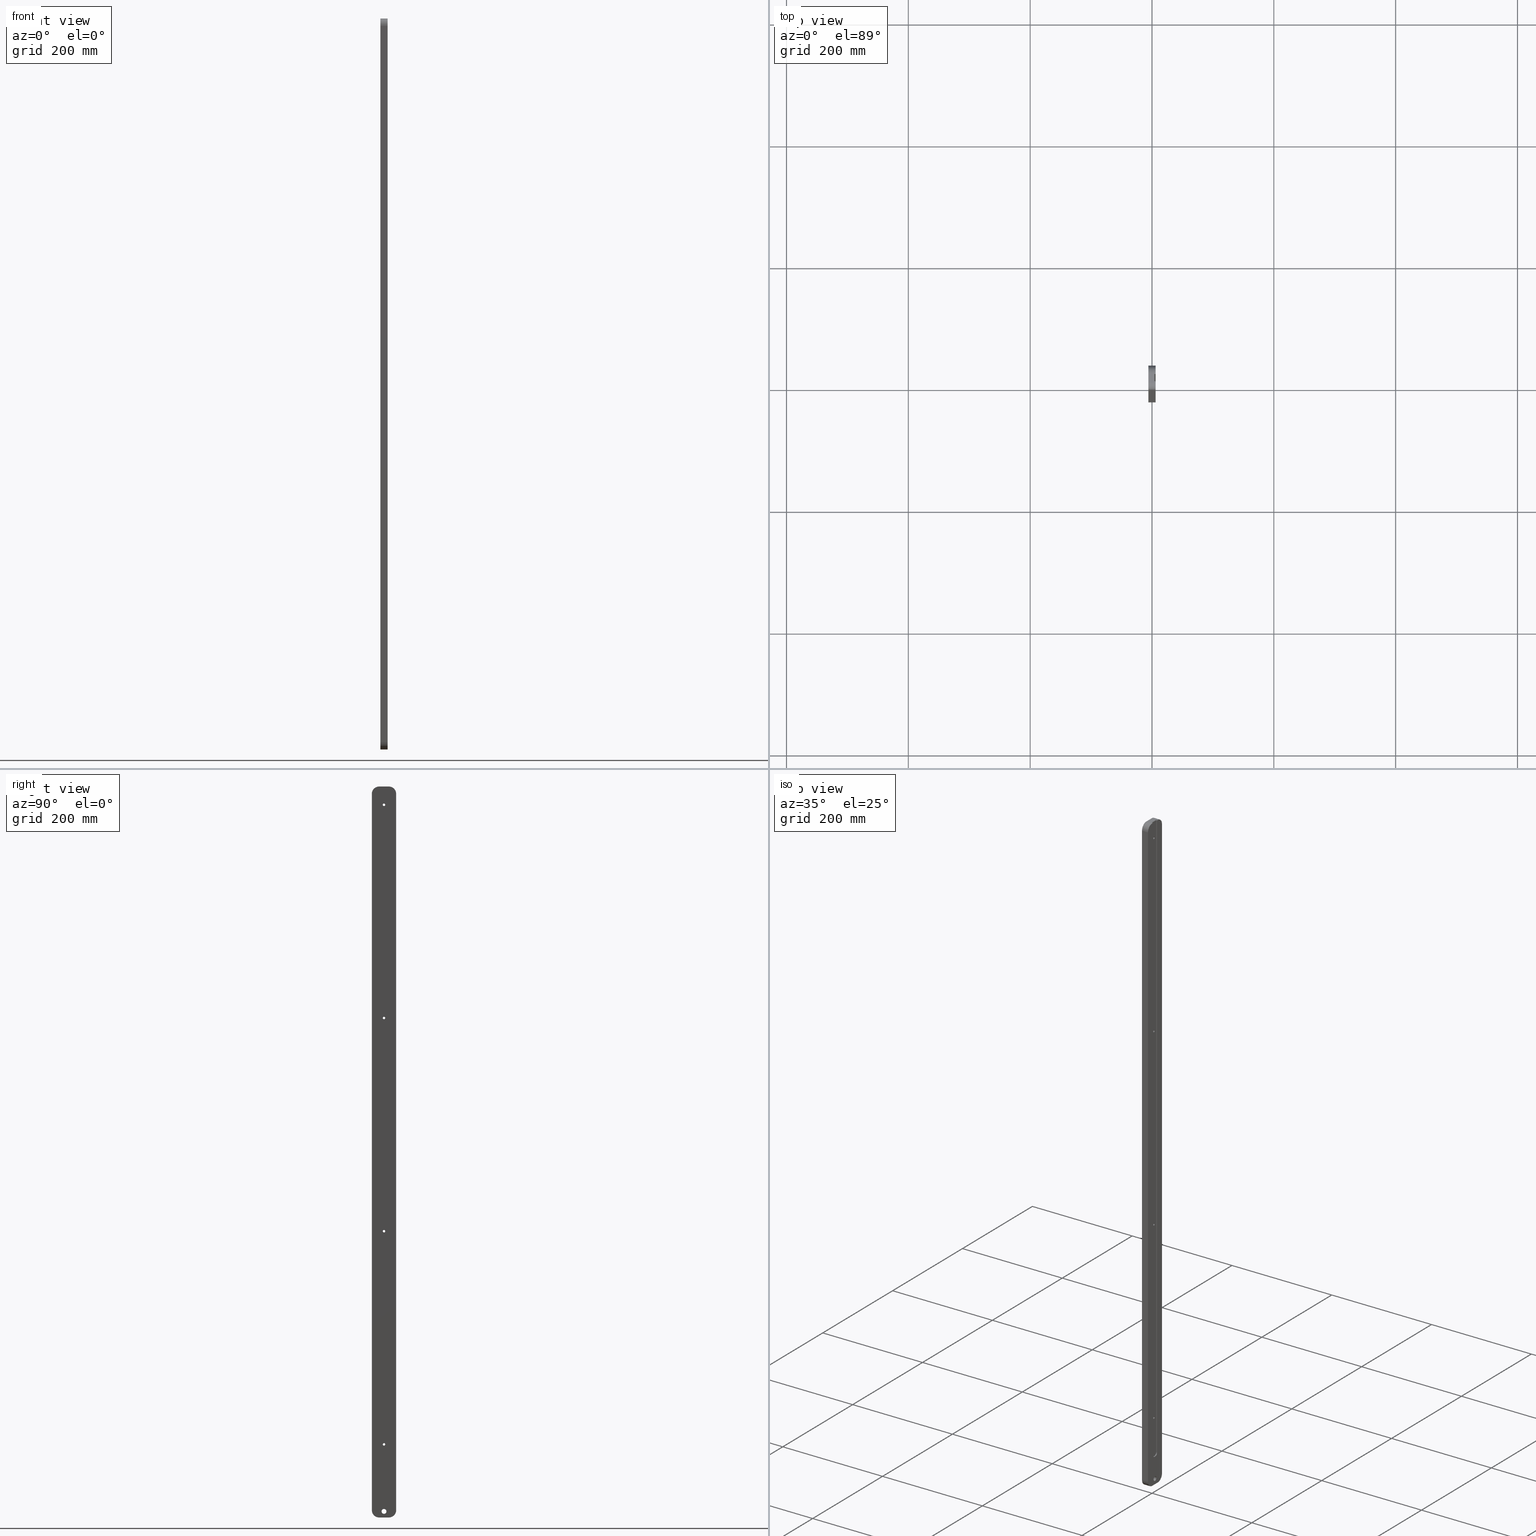
[diagram: canonical four-view strip — front | top / right | iso, engineering-drawing reading convention]
A machine part, canonical four-view strip (front | top / right | iso — engineering-drawing reading convention). The complete STEP part file that produces these views, byte-faithful:
ISO-10303-21;
HEADER;
FILE_DESCRIPTION (( 'STEP AP214' ),
    '1' );
FILE_NAME ('TripodLegSide.STEP',
    '2015-06-11T08:28:00',
    ( '' ),
    ( '' ),
    'SwSTEP 2.0',
    'SolidWorks 2014',
    '' );
FILE_SCHEMA (( 'AUTOMOTIVE_DESIGN' ));
ENDSEC;

DATA;
#1 = SURFACE_STYLE_USAGE ( .BOTH. , #101 ) ;
#2 = CARTESIAN_POINT ( 'NONE',  ( 4.000000000000003600, -7.806255641895627000E-016, 221.9999999999999700 ) ) ;
#3 = VECTOR ( 'NONE', #581, 1000.000000000000000 ) ;
#4 = AXIS2_PLACEMENT_3D ( 'NONE', #446, #488, #582 ) ;
#5 = CARTESIAN_POINT ( 'NONE',  ( 6.000000000000000900, 20.00000000000000000, 588.0000000000000000 ) ) ;
#6 = FACE_OUTER_BOUND ( 'NONE', #871, .T. ) ;
#7 = DIRECTION ( 'NONE',  ( 1.000000000000000000, 1.301042606982605600E-016, -0.0000000000000000000 ) ) ;
#8 = CARTESIAN_POINT ( 'NONE',  ( -6.001000000000002100, 3.999999999999991600, -590.0000000000000000 ) ) ;
#9 = AXIS2_PLACEMENT_3D ( 'NONE', #888, #763, #761 ) ;
#10 = ORIENTED_EDGE ( 'NONE', *, *, #656, .F. ) ;
#11 = LINE ( 'NONE', #332, #305 ) ;
#12 = DIRECTION ( 'NONE',  ( 0.0000000000000000000, 1.229390985148780800E-016, 1.000000000000000000 ) ) ;
#13 = DIRECTION ( 'NONE',  ( -1.000000000000000000, -0.0000000000000000000, -0.0000000000000000000 ) ) ;
#14 = CIRCLE ( 'NONE', #461, 3.999999999999992500 ) ;
#15 = AXIS2_PLACEMENT_3D ( 'NONE', #629, #652, #645 ) ;
#16 = CARTESIAN_POINT ( 'NONE',  ( -6.001000000000000300, -3.999999999999993300, -590.0000000000000000 ) ) ;
#17 = VECTOR ( 'NONE', #13, 1000.000000000000000 ) ;
#18 = DIRECTION ( 'NONE',  ( 0.0000000000000000000, 0.0000000000000000000, -1.000000000000000000 ) ) ;
#19 = STYLED_ITEM ( 'NONE', ( #53 ), #436 ) ;
#20 = AXIS2_PLACEMENT_3D ( 'NONE', #587, #573, #344 ) ;
#21 = EDGE_LOOP ( 'NONE', ( #791, #649, #726, #43 ) ) ;
#22 = ORIENTED_EDGE ( 'NONE', *, *, #794, .T. ) ;
#23 = CARTESIAN_POINT ( 'NONE',  ( 6.000000000000003600, 7.806255641895636900E-016, -590.0000000000000000 ) ) ;
#24 = CIRCLE ( 'NONE', #749, 12.00000000000000000 ) ;
#25 = AXIS2_PLACEMENT_3D ( 'NONE', #41, #140, #627 ) ;
#26 = ADVANCED_FACE ( 'NONE', ( #642, #796, #862, #837, #693, #780 ), #193, .F. ) ;
#27 = ORIENTED_EDGE ( 'NONE', *, *, #372, .T. ) ;
#28 = AXIS2_PLACEMENT_3D ( 'NONE', #308, #527, #750 ) ;
#29 = VECTOR ( 'NONE', #46, 1000.000000000000000 ) ;
#30 = EDGE_LOOP ( 'NONE', ( #887, #829, #251, #457, #903, #813, #312, #584 ) ) ;
#31 = CARTESIAN_POINT ( 'NONE',  ( -5.999999999999997300, 8.000000000000000000, -600.0000000000000000 ) ) ;
#32 = VECTOR ( 'NONE', #277, 1000.000000000000000 ) ;
#33 = CARTESIAN_POINT ( 'NONE',  ( 4.000000000000003600, -5.356962043600926000E-016, 568.0000000000000000 ) ) ;
#34 = AXIS2_PLACEMENT_3D ( 'NONE', #380, #747, #681 ) ;
#35 = VECTOR ( 'NONE', #62, 1000.000000000000000 ) ;
#36 = AXIS2_PLACEMENT_3D ( 'NONE', #276, #179, #60 ) ;
#37 = PLANE ( 'NONE',  #504 ) ;
#38 = ORIENTED_EDGE ( 'NONE', *, *, #521, .F. ) ;
#39 = AXIS2_PLACEMENT_3D ( 'NONE', #64, #412, #315 ) ;
#40 = CYLINDRICAL_SURFACE ( 'NONE', #359, 2.000000000000001800 ) ;
#41 = CARTESIAN_POINT ( 'NONE',  ( 4.000000000000003600, 0.9999999999998601100, -544.9999999999998900 ) ) ;
#42 = CARTESIAN_POINT ( 'NONE',  ( 6.000000000000004400, -8.000000000000000000, -588.0000000000000000 ) ) ;
#43 = ORIENTED_EDGE ( 'NONE', *, *, #130, .F. ) ;
#44 = CIRCLE ( 'NONE', #632, 1.999999999999998700 ) ;
#45 = CARTESIAN_POINT ( 'NONE',  ( 4.000000000000003600, -7.806255641895627000E-016, -130.0000000000000000 ) ) ;
#46 = DIRECTION ( 'NONE',  ( 1.000000000000000000, -0.0000000000000000000, 0.0000000000000000000 ) ) ;
#47 = AXIS2_PLACEMENT_3D ( 'NONE', #902, #599, #292 ) ;
#48 = LINE ( 'NONE', #574, #266 ) ;
#49 = DIRECTION ( 'NONE',  ( 1.445602896647339200E-016, -1.000000000000000000, 0.0000000000000000000 ) ) ;
#50 = DIRECTION ( 'NONE',  ( -1.000000000000000000, -1.301042606982605300E-016, 0.0000000000000000000 ) ) ;
#51 = FACE_BOUND ( 'NONE', #355, .T. ) ;
#52 = CARTESIAN_POINT ( 'NONE',  ( 6.000000000000002700, 5.999999999999860600, -544.9999999999998900 ) ) ;
#53 = PRESENTATION_STYLE_ASSIGNMENT (( #1 ) ) ;
#54 = DIRECTION ( 'NONE',  ( -1.445602896647373400E-016, 1.000000000000000000, 0.0000000000000000000 ) ) ;
#55 = VECTOR ( 'NONE', #217, 1000.000000000000000 ) ;
#56 = CARTESIAN_POINT ( 'NONE',  ( -5.999999999999996400, -5.356962043600925000E-016, -132.0000000000000000 ) ) ;
#57 = ADVANCED_FACE ( 'NONE', ( #682 ), #819, .T. ) ;
#58 = ORIENTED_EDGE ( 'NONE', *, *, #735, .F. ) ;
#59 = CIRCLE ( 'NONE', #561, 2.000000000000001800 ) ;
#60 = DIRECTION ( 'NONE',  ( 0.0000000000000000000, 0.0000000000000000000, -1.000000000000000000 ) ) ;
#61 = CARTESIAN_POINT ( 'NONE',  ( 6.000000000000003600, -0.9999999999998584500, -549.9999999999998900 ) ) ;
#62 = DIRECTION ( 'NONE',  ( -1.301042606982605300E-016, 1.000000000000000000, -0.0000000000000000000 ) ) ;
#63 = FACE_OUTER_BOUND ( 'NONE', #216, .T. ) ;
#64 = CARTESIAN_POINT ( 'NONE',  ( -5.999999999999999100, 20.00000000000000000, 600.0000000000000000 ) ) ;
#65 = EDGE_LOOP ( 'NONE', ( #553, #375, #118, #673 ) ) ;
#66 = EDGE_CURVE ( 'NONE', #702, #398, #825, .T. ) ;
#67 = VERTEX_POINT ( 'NONE', #33 ) ;
#68 = DIRECTION ( 'NONE',  ( 1.000000000000000000, 1.301042606982605300E-016, -0.0000000000000000000 ) ) ;
#69 = CIRCLE ( 'NONE', #481, 5.000000000000000000 ) ;
#70 = VECTOR ( 'NONE', #54, 1000.000000000000000 ) ;
#71 = CARTESIAN_POINT ( 'NONE',  ( -5.999999999999993800, -20.00000000000000000, -588.0000000000000000 ) ) ;
#72 = EDGE_CURVE ( 'NONE', #181, #690, #846, .T. ) ;
#73 = DIRECTION ( 'NONE',  ( -1.445602896647339200E-016, 1.000000000000000000, 0.0000000000000000000 ) ) ;
#74 = LINE ( 'NONE', #358, #70 ) ;
#75 = CARTESIAN_POINT ( 'NONE',  ( 6.000000000000002700, 8.000000000000000000, -588.0000000000000000 ) ) ;
#76 = DIRECTION ( 'NONE',  ( -1.445602896647339200E-016, 1.000000000000000000, 0.0000000000000000000 ) ) ;
#77 = CIRCLE ( 'NONE', #283, 1.999999999999998700 ) ;
#78 = AXIS2_PLACEMENT_3D ( 'NONE', #821, #141, #323 ) ;
#79 = CARTESIAN_POINT ( 'NONE',  ( -5.999999999999993800, -8.000000000000000000, -588.0000000000000000 ) ) ;
#80 = CARTESIAN_POINT ( 'NONE',  ( -5.999999999999995600, -3.999999999999993300, -590.0000000000000000 ) ) ;
#81 = VERTEX_POINT ( 'NONE', #31 ) ;
#82 = CIRCLE ( 'NONE', #390, 5.000000000000000000 ) ;
#83 = LINE ( 'NONE', #715, #32 ) ;
#84 = ORIENTED_EDGE ( 'NONE', *, *, #391, .F. ) ;
#85 = CARTESIAN_POINT ( 'NONE',  ( 4.000000000000003600, 6.071532165918828800E-016, -1.066326701545922800E-031 ) ) ;
#86 = ORIENTED_EDGE ( 'NONE', *, *, #309, .F. ) ;
#87 = CARTESIAN_POINT ( 'NONE',  ( 0.0000000000000000000, 0.0000000000000000000, -600.0000000000000000 ) ) ;
#88 = DIRECTION ( 'NONE',  ( -1.000000000000000000, -1.301042606982605300E-016, 0.0000000000000000000 ) ) ;
#89 = LINE ( 'NONE', #61, #3 ) ;
#90 = DIRECTION ( 'NONE',  ( 0.0000000000000000000, 0.0000000000000000000, 1.000000000000000000 ) ) ;
#91 = COLOUR_RGB ( '',1.000000000000000000, 1.000000000000000000, 1.000000000000000000 ) ;
#92 =( GEOMETRIC_REPRESENTATION_CONTEXT ( 3 ) GLOBAL_UNCERTAINTY_ASSIGNED_CONTEXT ( ( #264 ) ) GLOBAL_UNIT_ASSIGNED_CONTEXT ( ( #670, #238, #676 ) ) REPRESENTATION_CONTEXT ( 'NONE', 'WORKASPACE' ) );
#93 = DIRECTION ( 'NONE',  ( 1.301042606982605300E-016, -1.000000000000000000, 0.0000000000000000000 ) ) ;
#94 = VECTOR ( 'NONE', #376, 1000.000000000000000 ) ;
#95 = DIRECTION ( 'NONE',  ( 1.000000000000000000, 1.301042606982605600E-016, -0.0000000000000000000 ) ) ;
#96 = CYLINDRICAL_SURFACE ( 'NONE', #231, 2.000000000000001800 ) ;
#97 = VECTOR ( 'NONE', #12, 1000.000000000000000 ) ;
#98 = CIRCLE ( 'NONE', #833, 12.00000000000000000 ) ;
#99 = DIRECTION ( 'NONE',  ( 0.0000000000000000000, 0.0000000000000000000, 1.000000000000000000 ) ) ;
#100 = ORIENTED_EDGE ( 'NONE', *, *, #660, .F. ) ;
#101 = SURFACE_SIDE_STYLE ('',( #249 ) ) ;
#102 = CYLINDRICAL_SURFACE ( 'NONE', #694, 2.000000000000001800 ) ;
#103 = AXIS2_PLACEMENT_3D ( 'NONE', #333, #422, #648 ) ;
#104 = AXIS2_PLACEMENT_3D ( 'NONE', #546, #543, #701 ) ;
#105 = ADVANCED_FACE ( 'NONE', ( #808 ), #772, .F. ) ;
#106 = VECTOR ( 'NONE', #758, 1000.000000000000000 ) ;
#107 = LINE ( 'NONE', #636, #212 ) ;
#108 = LINE ( 'NONE', #337, #106 ) ;
#109 = VERTEX_POINT ( 'NONE', #624 ) ;
#110 = VERTEX_POINT ( 'NONE', #620 ) ;
#111 = AXIS2_PLACEMENT_3D ( 'NONE', #531, #393, #99 ) ;
#112 = CARTESIAN_POINT ( 'NONE',  ( -5.999999999999996400, -5.356962043600922100E-016, 568.0000000000000000 ) ) ;
#113 = FACE_OUTER_BOUND ( 'NONE', #497, .T. ) ;
#114 = DIRECTION ( 'NONE',  ( -2.168404344971013100E-016, 1.000000000000000000, 0.0000000000000000000 ) ) ;
#115 = FACE_OUTER_BOUND ( 'NONE', #367, .T. ) ;
#116 = STYLED_ITEM ( 'NONE', ( #357 ), #503 ) ;
#117 = VERTEX_POINT ( 'NONE', #580 ) ;
#118 = ORIENTED_EDGE ( 'NONE', *, *, #660, .T. ) ;
#119 = DIRECTION ( 'NONE',  ( -1.000000000000000000, -0.0000000000000000000, -0.0000000000000000000 ) ) ;
#120 = VECTOR ( 'NONE', #210, 1000.000000000000000 ) ;
#121 = DIRECTION ( 'NONE',  ( 1.445602896647339200E-016, -1.000000000000000000, 0.0000000000000000000 ) ) ;
#122 = LINE ( 'NONE', #128, #97 ) ;
#123 = EDGE_CURVE ( 'NONE', #755, #739, #709, .T. ) ;
#124 = FACE_OUTER_BOUND ( 'NONE', #401, .T. ) ;
#125 = LINE ( 'NONE', #495, #120 ) ;
#126 = DIRECTION ( 'NONE',  ( -1.000000000000000000, -0.0000000000000000000, -0.0000000000000000000 ) ) ;
#127 = VECTOR ( 'NONE', #194, 1000.000000000000000 ) ;
#128 = CARTESIAN_POINT ( 'NONE',  ( 4.000000000000002700, 5.999999999999859700, -549.9999999999998900 ) ) ;
#129 = AXIS2_PLACEMENT_3D ( 'NONE', #806, #385, #166 ) ;
#130 = EDGE_CURVE ( 'NONE', #716, #558, #803, .T. ) ;
#131 = LINE ( 'NONE', #163, #612 ) ;
#132 = CIRCLE ( 'NONE', #129, 1.999999999999998700 ) ;
#133 = PLANE ( 'NONE',  #294 ) ;
#134 = ADVANCED_FACE ( 'NONE', ( #618 ), #657, .F. ) ;
#135 = DIRECTION ( 'NONE',  ( 0.0000000000000000000, 0.0000000000000000000, 1.000000000000000000 ) ) ;
#136 = VECTOR ( 'NONE', #438, 1000.000000000000000 ) ;
#137 = FACE_OUTER_BOUND ( 'NONE', #403, .T. ) ;
#138 = CARTESIAN_POINT ( 'NONE',  ( -5.999999999999996400, -7.806255641895627000E-016, -477.9999999999998900 ) ) ;
#139 = VECTOR ( 'NONE', #279, 1000.000000000000000 ) ;
#140 = DIRECTION ( 'NONE',  ( -1.000000000000000000, -1.301042606982605300E-016, 0.0000000000000000000 ) ) ;
#141 = DIRECTION ( 'NONE',  ( -1.000000000000000000, -1.301042606982605300E-016, 0.0000000000000000000 ) ) ;
#142 = CIRCLE ( 'NONE', #678, 2.000000000000001800 ) ;
#143 = AXIS2_PLACEMENT_3D ( 'NONE', #616, #609, #245 ) ;
#144 = CIRCLE ( 'NONE', #250, 2.000000000000001800 ) ;
#145 = PRODUCT_RELATED_PRODUCT_CATEGORY ( 'part', '', ( #751 ) ) ;
#146 = VERTEX_POINT ( 'NONE', #562 ) ;
#147 = DIRECTION ( 'NONE',  ( -1.301042606982605300E-016, 1.000000000000000000, -0.0000000000000000000 ) ) ;
#148 = ORIENTED_EDGE ( 'NONE', *, *, #297, .F. ) ;
#149 = VERTEX_POINT ( 'NONE', #658 ) ;
#150 = DIRECTION ( 'NONE',  ( -1.000000000000000000, -0.0000000000000000000, -0.0000000000000000000 ) ) ;
#151 = LINE ( 'NONE', #281, #136 ) ;
#152 = CARTESIAN_POINT ( 'NONE',  ( 4.000000000000003600, 0.9999999999998601100, -544.9999999999998900 ) ) ;
#153 = CARTESIAN_POINT ( 'NONE',  ( 6.000000000000002700, 6.000000000000000900, 599.9999999999998900 ) ) ;
#154 = LINE ( 'NONE', #698, #139 ) ;
#155 = CIRCLE ( 'NONE', #785, 12.00000000000000000 ) ;
#156 = ORIENTED_EDGE ( 'NONE', *, *, #536, .F. ) ;
#157 = ORIENTED_EDGE ( 'NONE', *, *, #172, .F. ) ;
#158 = CARTESIAN_POINT ( 'NONE',  ( 4.000000000000003600, -7.806255641895627000E-016, 570.0000000000000000 ) ) ;
#159 = FILL_AREA_STYLE_COLOUR ( '', #644 ) ;
#160 = DIRECTION ( 'NONE',  ( 1.000000000000000000, 0.0000000000000000000, 0.0000000000000000000 ) ) ;
#161 = ORIENTED_EDGE ( 'NONE', *, *, #207, .T. ) ;
#162 = CIRCLE ( 'NONE', #683, 1.999999999999998700 ) ;
#163 = CARTESIAN_POINT ( 'NONE',  ( -5.999999999999999100, 20.00000000000000000, 600.0000000000000000 ) ) ;
#164 = VECTOR ( 'NONE', #500, 1000.000000000000000 ) ;
#165 = ORIENTED_EDGE ( 'NONE', *, *, #870, .T. ) ;
#166 = DIRECTION ( 'NONE',  ( 0.0000000000000000000, 1.000000000000000000, 0.0000000000000000000 ) ) ;
#167 = ADVANCED_FACE ( 'NONE', ( #788 ), #192, .F. ) ;
#168 = FACE_OUTER_BOUND ( 'NONE', #30, .T. ) ;
#169 = ORIENTED_EDGE ( 'NONE', *, *, #235, .T. ) ;
#170 = AXIS2_PLACEMENT_3D ( 'NONE', #23, #810, #241 ) ;
#171 = AXIS2_PLACEMENT_3D ( 'NONE', #474, #252, #270 ) ;
#172 = EDGE_CURVE ( 'NONE', #67, #746, #790, .T. ) ;
#173 = CYLINDRICAL_SURFACE ( 'NONE', #317, 12.00000000000001100 ) ;
#174 = CIRCLE ( 'NONE', #766, 5.000000000000000000 ) ;
#175 = EDGE_LOOP ( 'NONE', ( #350, #818, #554, #458 ) ) ;
#176 = ORIENTED_EDGE ( 'NONE', *, *, #745, .T. ) ;
#177 = ORIENTED_EDGE ( 'NONE', *, *, #215, .F. ) ;
#178 = LINE ( 'NONE', #832, #773 ) ;
#179 = DIRECTION ( 'NONE',  ( 1.000000000000000000, 0.0000000000000000000, 0.0000000000000000000 ) ) ;
#180 = LINE ( 'NONE', #841, #363 ) ;
#181 = VERTEX_POINT ( 'NONE', #432 ) ;
#182 = CIRCLE ( 'NONE', #4, 2.000000000000001800 ) ;
#183 = EDGE_CURVE ( 'NONE', #690, #710, #187, .T. ) ;
#184 = ORIENTED_EDGE ( 'NONE', *, *, #757, .F. ) ;
#185 = CARTESIAN_POINT ( 'NONE',  ( 4.000000000000004400, -5.999999999999857900, -549.9999999999998900 ) ) ;
#186 = VECTOR ( 'NONE', #771, 1000.000000000000000 ) ;
#187 = LINE ( 'NONE', #756, #186 ) ;
#188 = CIRCLE ( 'NONE', #867, 12.00000000000000000 ) ;
#189 = DIRECTION ( 'NONE',  ( 1.000000000000000000, 1.301042606982605300E-016, -0.0000000000000000000 ) ) ;
#190 = SURFACE_SIDE_STYLE ('',( #622 ) ) ;
#191 = EDGE_CURVE ( 'NONE', #547, #117, #828, .T. ) ;
#192 = CYLINDRICAL_SURFACE ( 'NONE', #490, 3.999999999999992500 ) ;
#193 = PLANE ( 'NONE',  #39 ) ;
#194 = DIRECTION ( 'NONE',  ( -1.000000000000000000, 0.0000000000000000000, 0.0000000000000000000 ) ) ;
#195 = CARTESIAN_POINT ( 'NONE',  ( -5.999999999999996400, -7.806255641895628000E-016, -590.0000000000000000 ) ) ;
#196 = VECTOR ( 'NONE', #371, 1000.000000000000000 ) ;
#197 = CARTESIAN_POINT ( 'NONE',  ( 4.000000000000003600, 0.9999999999998586700, -549.9999999999998900 ) ) ;
#198 = EDGE_CURVE ( 'NONE', #586, #356, #743, .T. ) ;
#199 = DIRECTION ( 'NONE',  ( 1.000000000000000000, 1.301042606982605300E-016, -0.0000000000000000000 ) ) ;
#200 = EDGE_CURVE ( 'NONE', #692, #291, #180, .T. ) ;
#201 = FACE_OUTER_BOUND ( 'NONE', #21, .T. ) ;
#202 = ADVANCED_FACE ( 'NONE', ( #765 ), #173, .T. ) ;
#203 = DIRECTION ( 'NONE',  ( 0.0000000000000000000, 1.000000000000000000, 0.0000000000000000000 ) ) ;
#204 = CARTESIAN_POINT ( 'NONE',  ( 6.000000000000002700, 8.000000000000000000, 600.0000000000000000 ) ) ;
#205 = FILL_AREA_STYLE ('',( #798 ) ) ;
#206 = AXIS2_PLACEMENT_3D ( 'NONE', #800, #18, #601 ) ;
#207 = EDGE_CURVE ( 'NONE', #109, #515, #174, .T. ) ;
#208 = ORIENTED_EDGE ( 'NONE', *, *, #913, .F. ) ;
#209 = ORIENTED_EDGE ( 'NONE', *, *, #801, .F. ) ;
#210 = DIRECTION ( 'NONE',  ( -1.301042606982605300E-016, 1.000000000000000000, -0.0000000000000000000 ) ) ;
#211 = DIRECTION ( 'NONE',  ( 0.0000000000000000000, 0.0000000000000000000, 1.000000000000000000 ) ) ;
#212 = VECTOR ( 'NONE', #840, 1000.000000000000000 ) ;
#213 = ORIENTED_EDGE ( 'NONE', *, *, #420, .F. ) ;
#214 = CARTESIAN_POINT ( 'NONE',  ( -5.999999999999996400, -7.806255641895627000E-016, 572.0000000000000000 ) ) ;
#215 = EDGE_CURVE ( 'NONE', #720, #586, #178, .T. ) ;
#216 = EDGE_LOOP ( 'NONE', ( #486, #533, #324, #177 ) ) ;
#217 = DIRECTION ( 'NONE',  ( -0.0000000000000000000, -0.0000000000000000000, -1.000000000000000000 ) ) ;
#218 = EDGE_CURVE ( 'NONE', #839, #611, #271, .T. ) ;
#219 = LINE ( 'NONE', #230, #17 ) ;
#220 = DIRECTION ( 'NONE',  ( -1.000000000000000000, -1.301042606982605300E-016, 0.0000000000000000000 ) ) ;
#221 = VECTOR ( 'NONE', #501, 1000.000000000000000 ) ;
#222 =( NAMED_UNIT ( * ) PLANE_ANGLE_UNIT ( ) SI_UNIT ( $, .RADIAN. ) );
#223 = ORIENTED_EDGE ( 'NONE', *, *, #218, .T. ) ;
#224 = ORIENTED_EDGE ( 'NONE', *, *, #123, .F. ) ;
#225 = DIRECTION ( 'NONE',  ( -2.168404344971013100E-016, 1.000000000000000000, 0.0000000000000000000 ) ) ;
#226 = FACE_OUTER_BOUND ( 'NONE', #760, .T. ) ;
#227 = EDGE_CURVE ( 'NONE', #638, #686, #188, .T. ) ;
#228 = CARTESIAN_POINT ( 'NONE',  ( 6.000000000000004400, -5.999999999999858800, -544.9999999999998900 ) ) ;
#229 = ORIENTED_EDGE ( 'NONE', *, *, #345, .T. ) ;
#230 = CARTESIAN_POINT ( 'NONE',  ( -5.999999999999996400, -5.356962043600922100E-016, -481.9999999999998900 ) ) ;
#231 = AXIS2_PLACEMENT_3D ( 'NONE', #262, #413, #135 ) ;
#232 = ORIENTED_EDGE ( 'NONE', *, *, #235, .F. ) ;
#233 = LINE ( 'NONE', #450, #55 ) ;
#234 =( GEOMETRIC_REPRESENTATION_CONTEXT ( 3 ) GLOBAL_UNCERTAINTY_ASSIGNED_CONTEXT ( ( #680 ) ) GLOBAL_UNIT_ASSIGNED_CONTEXT ( ( #588, #222, #426 ) ) REPRESENTATION_CONTEXT ( 'NONE', 'WORKASPACE' ) );
#235 = EDGE_CURVE ( 'NONE', #146, #839, #162, .T. ) ;
#236 = ORIENTED_EDGE ( 'NONE', *, *, #346, .T. ) ;
#237 = ORIENTED_EDGE ( 'NONE', *, *, #123, .T. ) ;
#238 =( NAMED_UNIT ( * ) PLANE_ANGLE_UNIT ( ) SI_UNIT ( $, .RADIAN. ) );
#239 = ORIENTED_EDGE ( 'NONE', *, *, #801, .T. ) ;
#240 = DIRECTION ( 'NONE',  ( 1.301042606982605300E-016, -1.000000000000000000, 0.0000000000000000000 ) ) ;
#241 = DIRECTION ( 'NONE',  ( -2.168404344971013100E-016, 1.000000000000000000, 0.0000000000000000000 ) ) ;
#242 = DIRECTION ( 'NONE',  ( 1.000000000000000000, 0.0000000000000000000, 0.0000000000000000000 ) ) ;
#243 = VERTEX_POINT ( 'NONE', #704 ) ;
#244 = ORIENTED_EDGE ( 'NONE', *, *, #757, .T. ) ;
#245 = DIRECTION ( 'NONE',  ( 0.0000000000000000000, 1.000000000000000000, 0.0000000000000000000 ) ) ;
#246 = CIRCLE ( 'NONE', #258, 2.000000000000001800 ) ;
#247 = ADVANCED_FACE ( 'NONE', ( #878 ), #37, .F. ) ;
#248 = ORIENTED_EDGE ( 'NONE', *, *, #218, .F. ) ;
#249 = SURFACE_STYLE_FILL_AREA ( #535 ) ;
#250 = AXIS2_PLACEMENT_3D ( 'NONE', #404, #551, #646 ) ;
#251 = ORIENTED_EDGE ( 'NONE', *, *, #263, .T. ) ;
#252 = DIRECTION ( 'NONE',  ( -1.000000000000000000, -0.0000000000000000000, -0.0000000000000000000 ) ) ;
#253 = VERTEX_POINT ( 'NONE', #663 ) ;
#254 = EDGE_CURVE ( 'NONE', #688, #291, #154, .T. ) ;
#255 = CARTESIAN_POINT ( 'NONE',  ( -5.999999999999999100, 20.00000000000000000, -588.0000000000000000 ) ) ;
#256 = CYLINDRICAL_SURFACE ( 'NONE', #111, 2.000000000000001800 ) ;
#257 = EDGE_LOOP ( 'NONE', ( #514, #795, #148, #885 ) ) ;
#258 = AXIS2_PLACEMENT_3D ( 'NONE', #876, #451, #90 ) ;
#259 = CARTESIAN_POINT ( 'NONE',  ( -5.999999999999995600, -8.000000000000000000, 588.0000000000000000 ) ) ;
#260 = VERTEX_POINT ( 'NONE', #328 ) ;
#261 = ORIENTED_EDGE ( 'NONE', *, *, #664, .F. ) ;
#262 = CARTESIAN_POINT ( 'NONE',  ( -5.999999999999996400, -7.806255641895627000E-016, 570.0000000000000000 ) ) ;
#263 = EDGE_CURVE ( 'NONE', #282, #547, #151, .T. ) ;
#264 = UNCERTAINTY_MEASURE_WITH_UNIT (LENGTH_MEASURE( 1.000000000000000100E-005 ), #670, 'distance_accuracy_value', 'NONE');
#265 = DIRECTION ( 'NONE',  ( -1.000000000000000000, -0.0000000000000000000, -0.0000000000000000000 ) ) ;
#266 = VECTOR ( 'NONE', #126, 1000.000000000000000 ) ;
#267 = CARTESIAN_POINT ( 'NONE',  ( 6.000000000000000900, 20.00000000000000000, 600.0000000000000000 ) ) ;
#268 = EDGE_LOOP ( 'NONE', ( #58, #661, #244, #27 ) ) ;
#269 = ORIENTED_EDGE ( 'NONE', *, *, #499, .F. ) ;
#270 = DIRECTION ( 'NONE',  ( 0.0000000000000000000, 0.0000000000000000000, 1.000000000000000000 ) ) ;
#271 = LINE ( 'NONE', #361, #164 ) ;
#272 = DIRECTION ( 'NONE',  ( -1.000000000000000000, -1.301042606982605300E-016, 0.0000000000000000000 ) ) ;
#273 = AXIS2_PLACEMENT_3D ( 'NONE', #286, #860, #302 ) ;
#274 = ADVANCED_FACE ( 'NONE', ( #137 ), #352, .F. ) ;
#275 = CLOSED_SHELL ( 'NONE', ( #343, #842, #569, #429, #167, #26, #615, #247, #651, #754, #718, #57, #466, #202, #687, #134, #814, #777, #540, #901, #105, #492, #313, #880, #274, #397 ) ) ;
#276 = CARTESIAN_POINT ( 'NONE',  ( 0.0000000000000000000, 8.000000000000000000, 588.0000000000000000 ) ) ;
#277 = DIRECTION ( 'NONE',  ( -1.000000000000000000, -0.0000000000000000000, -0.0000000000000000000 ) ) ;
#278 = EDGE_LOOP ( 'NONE', ( #10, #208 ) ) ;
#279 = DIRECTION ( 'NONE',  ( -1.000000000000000000, -1.301042606982605300E-016, -0.0000000000000000000 ) ) ;
#280 = CARTESIAN_POINT ( 'NONE',  ( 6.000000000000002700, 8.000000000000000000, -600.0000000000000000 ) ) ;
#281 = CARTESIAN_POINT ( 'NONE',  ( -5.999999999999999100, 8.000000000000000000, 600.0000000000000000 ) ) ;
#282 = VERTEX_POINT ( 'NONE', #204 ) ;
#283 = AXIS2_PLACEMENT_3D ( 'NONE', #158, #671, #597 ) ;
#284 = EDGE_CURVE ( 'NONE', #686, #334, #865, .T. ) ;
#285 = CIRCLE ( 'NONE', #650, 2.000000000000001800 ) ;
#286 = CARTESIAN_POINT ( 'NONE',  ( 4.000000000000004400, -5.999999999999857900, -549.9999999999998900 ) ) ;
#287 = PRODUCT_DEFINITION_FORMATION_WITH_SPECIFIED_SOURCE ( 'ANY', '', #751, .NOT_KNOWN. ) ;
#288 = MECHANICAL_DESIGN_GEOMETRIC_PRESENTATION_REPRESENTATION (  '', ( #116 ), #234 ) ;
#289 = DIRECTION ( 'NONE',  ( -2.168404344971013100E-016, 1.000000000000000000, 0.0000000000000000000 ) ) ;
#290 = FACE_BOUND ( 'NONE', #383, .T. ) ;
#291 = VERTEX_POINT ( 'NONE', #197 ) ;
#292 = DIRECTION ( 'NONE',  ( -2.168404344971013100E-016, 1.000000000000000000, 0.0000000000000000000 ) ) ;
#293 = ORIENTED_EDGE ( 'NONE', *, *, #443, .F. ) ;
#294 = AXIS2_PLACEMENT_3D ( 'NONE', #857, #736, #242 ) ;
#295 = DIRECTION ( 'NONE',  ( -1.734723475976807100E-016, 1.000000000000000000, 0.0000000000000000000 ) ) ;
#296 = FACE_OUTER_BOUND ( 'NONE', #472, .T. ) ;
#297 = EDGE_CURVE ( 'NONE', #690, #688, #555, .T. ) ;
#298 = CARTESIAN_POINT ( 'NONE',  ( 4.000000000000004400, -5.999999999999999100, 599.9999999999998900 ) ) ;
#299 = PLANE ( 'NONE',  #463 ) ;
#300 = CARTESIAN_POINT ( 'NONE',  ( -5.999999999999999100, 20.00000000000000000, -600.0000000000000000 ) ) ;
#301 = ORIENTED_EDGE ( 'NONE', *, *, #297, .T. ) ;
#302 = DIRECTION ( 'NONE',  ( 1.000000000000000000, 1.301042606982605300E-016, 0.0000000000000000000 ) ) ;
#303 = ORIENTED_EDGE ( 'NONE', *, *, #836, .F. ) ;
#304 = ORIENTED_EDGE ( 'NONE', *, *, #198, .F. ) ;
#305 = VECTOR ( 'NONE', #767, 1000.000000000000000 ) ;
#306 = CARTESIAN_POINT ( 'NONE',  ( -5.999999999999996400, -7.806255641895627000E-016, 572.0000000000000000 ) ) ;
#307 = DIRECTION ( 'NONE',  ( -0.0000000000000000000, 0.0000000000000000000, 1.000000000000000000 ) ) ;
#308 = CARTESIAN_POINT ( 'NONE',  ( 4.000000000000003600, -0.9999999999998586700, -544.9999999999998900 ) ) ;
#309 = EDGE_CURVE ( 'NONE', #710, #282, #125, .T. ) ;
#310 = LINE ( 'NONE', #769, #910 ) ;
#311 = EDGE_CURVE ( 'NONE', #570, #611, #142, .T. ) ;
#312 = ORIENTED_EDGE ( 'NONE', *, *, #456, .F. ) ;
#313 = ADVANCED_FACE ( 'NONE', ( #115 ), #96, .F. ) ;
#314 = EDGE_CURVE ( 'NONE', #547, #716, #108, .T. ) ;
#315 = DIRECTION ( 'NONE',  ( -1.301042606982605300E-016, 1.000000000000000000, 0.0000000000000000000 ) ) ;
#316 = LINE ( 'NONE', #805, #882 ) ;
#317 = AXIS2_PLACEMENT_3D ( 'NONE', #847, #729, #722 ) ;
#318 = DIRECTION ( 'NONE',  ( 0.0000000000000000000, -0.0000000000000000000, -1.000000000000000000 ) ) ;
#319 = ORIENTED_EDGE ( 'NONE', *, *, #745, .F. ) ;
#320 = FACE_OUTER_BOUND ( 'NONE', #579, .T. ) ;
#321 = EDGE_CURVE ( 'NONE', #611, #570, #144, .T. ) ;
#322 = CYLINDRICAL_SURFACE ( 'NONE', #47, 3.999999999999992500 ) ;
#323 = DIRECTION ( 'NONE',  ( 1.734723475976807100E-016, -1.000000000000000000, 0.0000000000000000000 ) ) ;
#324 = ORIENTED_EDGE ( 'NONE', *, *, #530, .T. ) ;
#325 = VERTEX_POINT ( 'NONE', #214 ) ;
#326 = EDGE_CURVE ( 'NONE', #109, #688, #74, .T. ) ;
#327 = VERTEX_POINT ( 'NONE', #568 ) ;
#328 = CARTESIAN_POINT ( 'NONE',  ( 6.000000000000006200, -20.00000000000000000, 588.0000000000000000 ) ) ;
#329 = EDGE_CURVE ( 'NONE', #110, #149, #98, .T. ) ;
#330 = AXIS2_PLACEMENT_3D ( 'NONE', #666, #199, #454 ) ;
#331 = EDGE_CURVE ( 'NONE', #398, #692, #69, .T. ) ;
#332 = CARTESIAN_POINT ( 'NONE',  ( 4.000000000000002700, 6.000000000000000900, 599.9999999999998900 ) ) ;
#333 = CARTESIAN_POINT ( 'NONE',  ( 6.000000000000004400, -8.000000000000000000, 588.0000000000000000 ) ) ;
#334 = VERTEX_POINT ( 'NONE', #891 ) ;
#335 = PRODUCT_DEFINITION ( 'UNKNOWN', '', #287, #775 ) ;
#336 = ORIENTED_EDGE ( 'NONE', *, *, #369, .F. ) ;
#337 = CARTESIAN_POINT ( 'NONE',  ( -5.999999999999999100, 20.00000000000000000, 600.0000000000000000 ) ) ;
#338 = ORIENTED_EDGE ( 'NONE', *, *, #530, .F. ) ;
#339 = DIRECTION ( 'NONE',  ( 0.0000000000000000000, 0.0000000000000000000, 1.000000000000000000 ) ) ;
#340 = ORIENTED_EDGE ( 'NONE', *, *, #369, .T. ) ;
#341 = DIRECTION ( 'NONE',  ( -0.0000000000000000000, -0.0000000000000000000, -1.000000000000000000 ) ) ;
#342 = VECTOR ( 'NONE', #567, 1000.000000000000000 ) ;
#343 = ADVANCED_FACE ( 'NONE', ( #63 ), #40, .F. ) ;
#344 = DIRECTION ( 'NONE',  ( 0.0000000000000000000, 0.0000000000000000000, 1.000000000000000000 ) ) ;
#345 = EDGE_CURVE ( 'NONE', #839, #146, #44, .T. ) ;
#346 = EDGE_CURVE ( 'NONE', #146, #570, #83, .T. ) ;
#347 = VERTEX_POINT ( 'NONE', #468 ) ;
#348 = EDGE_LOOP ( 'NONE', ( #349, #209, #467, #909 ) ) ;
#349 = ORIENTED_EDGE ( 'NONE', *, *, #227, .F. ) ;
#350 = ORIENTED_EDGE ( 'NONE', *, *, #402, .T. ) ;
#351 = DIRECTION ( 'NONE',  ( 1.000000000000000000, 1.445602896647339200E-016, -1.777211169243203500E-032 ) ) ;
#352 = CYLINDRICAL_SURFACE ( 'NONE', #171, 2.000000000000001800 ) ;
#353 = PLANE ( 'NONE',  #435 ) ;
#354 = ORIENTED_EDGE ( 'NONE', *, *, #723, .T. ) ;
#355 = EDGE_LOOP ( 'NONE', ( #883, #640 ) ) ;
#356 = VERTEX_POINT ( 'NONE', #483 ) ;
#357 = PRESENTATION_STYLE_ASSIGNMENT (( #484 ) ) ;
#358 = CARTESIAN_POINT ( 'NONE',  ( 6.000000000000004400, -5.999999999999857900, -549.9999999999998900 ) ) ;
#359 = AXIS2_PLACEMENT_3D ( 'NONE', #557, #633, #843 ) ;
#360 = PRODUCT_CONTEXT ( 'NONE', #464, 'mechanical' ) ;
#361 = CARTESIAN_POINT ( 'NONE',  ( -5.999999999999996400, -7.806255641895627000E-016, -128.0000000000000000 ) ) ;
#362 = EDGE_CURVE ( 'NONE', #428, #716, #24, .T. ) ;
#363 = VECTOR ( 'NONE', #425, 1000.000000000000000 ) ;
#364 = DIRECTION ( 'NONE',  ( -1.000000000000000000, -0.0000000000000000000, -0.0000000000000000000 ) ) ;
#365 = VECTOR ( 'NONE', #95, 1000.000000000000000 ) ;
#366 = APPLICATION_PROTOCOL_DEFINITION ( 'draft international standard', 'automotive_design', 1998, #787 ) ;
#367 = EDGE_LOOP ( 'NONE', ( #157, #22, #893, #340 ) ) ;
#368 = DIRECTION ( 'NONE',  ( -1.000000000000000000, -0.0000000000000000000, -0.0000000000000000000 ) ) ;
#369 = EDGE_CURVE ( 'NONE', #325, #746, #59, .T. ) ;
#370 = LINE ( 'NONE', #835, #541 ) ;
#371 = DIRECTION ( 'NONE',  ( 1.000000000000000000, -0.0000000000000000000, -0.0000000000000000000 ) ) ;
#372 = EDGE_CURVE ( 'NONE', #672, #852, #14, .T. ) ;
#373 = ORIENTED_EDGE ( 'NONE', *, *, #215, .T. ) ;
#374 = LINE ( 'NONE', #16, #365 ) ;
#375 = ORIENTED_EDGE ( 'NONE', *, *, #420, .T. ) ;
#376 = DIRECTION ( 'NONE',  ( 1.445602896647339200E-016, -1.000000000000000000, -0.0000000000000000000 ) ) ;
#377 = ORIENTED_EDGE ( 'NONE', *, *, #321, .T. ) ;
#378 = LINE ( 'NONE', #455, #406 ) ;
#379 = CARTESIAN_POINT ( 'NONE',  ( 4.000000000000003600, -5.356962043600926000E-016, -481.9999999999998900 ) ) ;
#380 = CARTESIAN_POINT ( 'NONE',  ( -5.999999999999996400, -7.806255641895627000E-016, 219.9999999999999700 ) ) ;
#381 = ORIENTED_EDGE ( 'NONE', *, *, #752, .T. ) ;
#382 = CARTESIAN_POINT ( 'NONE',  ( -5.999999999999993800, -20.00000000000000000, 588.0000000000000000 ) ) ;
#383 = EDGE_LOOP ( 'NONE', ( #853, #647 ) ) ;
#384 = EDGE_CURVE ( 'NONE', #692, #109, #89, .T. ) ;
#385 = DIRECTION ( 'NONE',  ( 1.000000000000000000, 1.445602896647339200E-016, -1.777211169243203500E-032 ) ) ;
#386 = FACE_OUTER_BOUND ( 'NONE', #407, .T. ) ;
#387 = AXIS2_PLACEMENT_3D ( 'NONE', #625, #368, #444 ) ;
#388 = EDGE_LOOP ( 'NONE', ( #424, #156 ) ) ;
#389 = LINE ( 'NONE', #306, #441 ) ;
#390 = AXIS2_PLACEMENT_3D ( 'NONE', #152, #844, #295 ) ;
#391 = EDGE_CURVE ( 'NONE', #327, #710, #11, .T. ) ;
#392 = ORIENTED_EDGE ( 'NONE', *, *, #859, .F. ) ;
#393 = DIRECTION ( 'NONE',  ( -1.000000000000000000, -0.0000000000000000000, -0.0000000000000000000 ) ) ;
#394 = LINE ( 'NONE', #8, #890 ) ;
#395 = AXIS2_PLACEMENT_3D ( 'NONE', #812, #211, #727 ) ;
#396 = ORIENTED_EDGE ( 'NONE', *, *, #314, .F. ) ;
#397 = ADVANCED_FACE ( 'NONE', ( #386 ), #102, .F. ) ;
#398 = VERTEX_POINT ( 'NONE', #635 ) ;
#399 = ORIENTED_EDGE ( 'NONE', *, *, #605, .T. ) ;
#400 = ORIENTED_EDGE ( 'NONE', *, *, #831, .T. ) ;
#401 = EDGE_LOOP ( 'NONE', ( #667, #479, #433, #423 ) ) ;
#402 = EDGE_CURVE ( 'NONE', #243, #515, #310, .T. ) ;
#403 = EDGE_LOOP ( 'NONE', ( #759, #169, #223, #377 ) ) ;
#404 = CARTESIAN_POINT ( 'NONE',  ( -5.999999999999996400, -7.806255641895627000E-016, -130.0000000000000000 ) ) ;
#405 = ORIENTED_EDGE ( 'NONE', *, *, #608, .T. ) ;
#406 = VECTOR ( 'NONE', #594, 1000.000000000000000 ) ;
#407 = EDGE_LOOP ( 'NONE', ( #804, #440, #373, #634 ) ) ;
#408 = LINE ( 'NONE', #724, #221 ) ;
#409 = DIRECTION ( 'NONE',  ( 1.734723475976807100E-016, -1.000000000000000000, 0.0000000000000000000 ) ) ;
#410 = ORIENTED_EDGE ( 'NONE', *, *, #577, .T. ) ;
#411 = EDGE_LOOP ( 'NONE', ( #602, #269 ) ) ;
#412 = DIRECTION ( 'NONE',  ( 1.000000000000000000, 1.301042606982605300E-016, -0.0000000000000000000 ) ) ;
#413 = DIRECTION ( 'NONE',  ( -1.000000000000000000, -0.0000000000000000000, -0.0000000000000000000 ) ) ;
#414 = ORIENTED_EDGE ( 'NONE', *, *, #502, .F. ) ;
#415 = DIRECTION ( 'NONE',  ( -1.000000000000000000, -0.0000000000000000000, -0.0000000000000000000 ) ) ;
#416 = VERTEX_POINT ( 'NONE', #71 ) ;
#417 = DIRECTION ( 'NONE',  ( -0.0000000000000000000, 1.229390985148780800E-016, -1.000000000000000000 ) ) ;
#418 = DIRECTION ( 'NONE',  ( 0.0000000000000000000, 0.0000000000000000000, 1.000000000000000000 ) ) ;
#419 = FACE_BOUND ( 'NONE', #598, .T. ) ;
#420 = EDGE_CURVE ( 'NONE', #117, #904, #619, .T. ) ;
#421 = DIRECTION ( 'NONE',  ( -1.000000000000000000, -1.301042606982605300E-016, 0.0000000000000000000 ) ) ;
#422 = DIRECTION ( 'NONE',  ( 1.000000000000000000, 1.301042606982605300E-016, -0.0000000000000000000 ) ) ;
#423 = ORIENTED_EDGE ( 'NONE', *, *, #254, .T. ) ;
#424 = ORIENTED_EDGE ( 'NONE', *, *, #493, .F. ) ;
#425 = DIRECTION ( 'NONE',  ( -1.445602896647373400E-016, 1.000000000000000000, 0.0000000000000000000 ) ) ;
#426 =( NAMED_UNIT ( * ) SI_UNIT ( $, .STERADIAN. ) SOLID_ANGLE_UNIT ( ) );
#427 = VERTEX_POINT ( 'NONE', #592 ) ;
#428 = VERTEX_POINT ( 'NONE', #382 ) ;
#429 = ADVANCED_FACE ( 'NONE', ( #6 ), #538, .F. ) ;
#430 = CARTESIAN_POINT ( 'NONE',  ( 4.000000000000003600, -0.9999999999998586700, -544.9999999999998900 ) ) ;
#431 = DIRECTION ( 'NONE',  ( -1.000000000000000000, 0.0000000000000000000, -0.0000000000000000000 ) ) ;
#432 = CARTESIAN_POINT ( 'NONE',  ( 4.000000000000002700, 5.999999999999860600, -544.9999999999998900 ) ) ;
#433 = ORIENTED_EDGE ( 'NONE', *, *, #326, .T. ) ;
#434 = DIRECTION ( 'NONE',  ( -1.000000000000000000, -0.0000000000000000000, -0.0000000000000000000 ) ) ;
#435 = AXIS2_PLACEMENT_3D ( 'NONE', #85, #508, #76 ) ;
#436 = ADVANCED_BREP_SHAPE_REPRESENTATION ( 'TripodLegSide', ( #503, #395 ), #92 ) ;
#437 = EDGE_CURVE ( 'NONE', #755, #427, #762, .T. ) ;
#438 = DIRECTION ( 'NONE',  ( -1.000000000000000000, 0.0000000000000000000, 0.0000000000000000000 ) ) ;
#439 = CARTESIAN_POINT ( 'NONE',  ( 6.000000000000004400, -8.000000000000000000, 600.0000000000000000 ) ) ;
#440 = ORIENTED_EDGE ( 'NONE', *, *, #913, .T. ) ;
#441 = VECTOR ( 'NONE', #447, 1000.000000000000000 ) ;
#442 = CARTESIAN_POINT ( 'NONE',  ( 4.000000000000003600, -7.806255641895627000E-016, -477.9999999999998900 ) ) ;
#443 = EDGE_CURVE ( 'NONE', #786, #416, #155, .T. ) ;
#444 = DIRECTION ( 'NONE',  ( 0.0000000000000000000, 0.0000000000000000000, 1.000000000000000000 ) ) ;
#445 = ORIENTED_EDGE ( 'NONE', *, *, #717, .T. ) ;
#446 = CARTESIAN_POINT ( 'NONE',  ( -5.999999999999996400, -7.806255641895627000E-016, 570.0000000000000000 ) ) ;
#447 = DIRECTION ( 'NONE',  ( -1.000000000000000000, -0.0000000000000000000, -0.0000000000000000000 ) ) ;
#448 = EDGE_LOOP ( 'NONE', ( #261, #532, #732, #849 ) ) ;
#449 = CARTESIAN_POINT ( 'NONE',  ( -5.999999999999996400, -5.356962043600925000E-016, 568.0000000000000000 ) ) ;
#450 = CARTESIAN_POINT ( 'NONE',  ( -5.999999999999993800, -20.00000000000000000, 600.0000000000000000 ) ) ;
#451 = DIRECTION ( 'NONE',  ( -1.000000000000000000, -0.0000000000000000000, -0.0000000000000000000 ) ) ;
#452 = DIRECTION ( 'NONE',  ( -0.0000000000000000000, -0.0000000000000000000, -1.000000000000000000 ) ) ;
#453 = EDGE_LOOP ( 'NONE', ( #875, #239, #38, #518 ) ) ;
#454 = DIRECTION ( 'NONE',  ( 1.445602896647339200E-016, -1.000000000000000000, 0.0000000000000000000 ) ) ;
#455 = CARTESIAN_POINT ( 'NONE',  ( -5.999999999999993800, -20.00000000000000000, 588.0000000000000000 ) ) ;
#456 = EDGE_CURVE ( 'NONE', #702, #243, #107, .T. ) ;
#457 = ORIENTED_EDGE ( 'NONE', *, *, #314, .T. ) ;
#458 = ORIENTED_EDGE ( 'NONE', *, *, #456, .T. ) ;
#459 = CARTESIAN_POINT ( 'NONE',  ( 4.000000000000003600, -7.806255641895627000E-016, -128.0000000000000000 ) ) ;
#460 = ORIENTED_EDGE ( 'NONE', *, *, #443, .T. ) ;
#461 = AXIS2_PLACEMENT_3D ( 'NONE', #696, #854, #114 ) ;
#462 = DIRECTION ( 'NONE',  ( -0.0000000000000000000, -0.0000000000000000000, -1.000000000000000000 ) ) ;
#463 = AXIS2_PLACEMENT_3D ( 'NONE', #87, #307, #160 ) ;
#464 = APPLICATION_CONTEXT ( 'automotive_design' ) ;
#465 = LINE ( 'NONE', #513, #816 ) ;
#466 = ADVANCED_FACE ( 'NONE', ( #201 ), #485, .T. ) ;
#467 = ORIENTED_EDGE ( 'NONE', *, *, #717, .F. ) ;
#468 = CARTESIAN_POINT ( 'NONE',  ( 4.000000000000003600, -7.806255641895627000E-016, 572.0000000000000000 ) ) ;
#469 = EDGE_LOOP ( 'NONE', ( #511, #213, #491, #556 ) ) ;
#470 = DIRECTION ( 'NONE',  ( 1.000000000000000000, 1.301042606982605300E-016, 0.0000000000000000000 ) ) ;
#471 = DIRECTION ( 'NONE',  ( -1.000000000000000000, -1.301042606982605300E-016, 0.0000000000000000000 ) ) ;
#472 = EDGE_LOOP ( 'NONE', ( #237, #695, #593, #886 ) ) ;
#473 = EDGE_LOOP ( 'NONE', ( #703, #830, #697, #84 ) ) ;
#474 = CARTESIAN_POINT ( 'NONE',  ( -5.999999999999996400, -7.806255641895627000E-016, -130.0000000000000000 ) ) ;
#475 = EDGE_LOOP ( 'NONE', ( #336, #414 ) ) ;
#476 = ORIENTED_EDGE ( 'NONE', *, *, #537, .F. ) ;
#477 = ORIENTED_EDGE ( 'NONE', *, *, #384, .F. ) ;
#478 = CARTESIAN_POINT ( 'NONE',  ( 4.000000000000003600, -7.806255641895627000E-016, -130.0000000000000000 ) ) ;
#479 = ORIENTED_EDGE ( 'NONE', *, *, #384, .T. ) ;
#480 = EDGE_LOOP ( 'NONE', ( #293, #512, #677, #476 ) ) ;
#481 = AXIS2_PLACEMENT_3D ( 'NONE', #430, #351, #778 ) ;
#482 = EDGE_CURVE ( 'NONE', #149, #786, #465, .T. ) ;
#483 = CARTESIAN_POINT ( 'NONE',  ( -5.999999999999996400, -5.356962043600925000E-016, -481.9999999999998900 ) ) ;
#484 = SURFACE_STYLE_USAGE ( .BOTH. , #190 ) ;
#485 = CYLINDRICAL_SURFACE ( 'NONE', #894, 12.00000000000001100 ) ;
#486 = ORIENTED_EDGE ( 'NONE', *, *, #656, .T. ) ;
#487 = CARTESIAN_POINT ( 'NONE',  ( -5.999999999999996400, -7.806255641895627000E-016, 570.0000000000000000 ) ) ;
#488 = DIRECTION ( 'NONE',  ( -1.000000000000000000, -0.0000000000000000000, -0.0000000000000000000 ) ) ;
#489 = CYLINDRICAL_SURFACE ( 'NONE', #589, 12.00000000000001100 ) ;
#490 = AXIS2_PLACEMENT_3D ( 'NONE', #689, #637, #631 ) ;
#491 = ORIENTED_EDGE ( 'NONE', *, *, #191, .F. ) ;
#492 = ADVANCED_FACE ( 'NONE', ( #545 ), #322, .F. ) ;
#493 = EDGE_CURVE ( 'NONE', #721, #782, #626, .T. ) ;
#494 = ORIENTED_EDGE ( 'NONE', *, *, #66, .T. ) ;
#495 = CARTESIAN_POINT ( 'NONE',  ( 6.000000000000000900, 20.00000000000000000, 600.0000000000000000 ) ) ;
#496 = DIRECTION ( 'NONE',  ( -0.0000000000000000000, 1.229390985148780800E-016, -1.000000000000000000 ) ) ;
#497 = EDGE_LOOP ( 'NONE', ( #662, #510, #630, #477 ) ) ;
#498 = EDGE_LOOP ( 'NONE', ( #834, #675, #400, #184 ) ) ;
#499 = EDGE_CURVE ( 'NONE', #253, #427, #285, .T. ) ;
#500 = DIRECTION ( 'NONE',  ( -1.000000000000000000, -0.0000000000000000000, -0.0000000000000000000 ) ) ;
#501 = DIRECTION ( 'NONE',  ( -1.000000000000000000, -1.301042606982605300E-016, -0.0000000000000000000 ) ) ;
#502 = EDGE_CURVE ( 'NONE', #746, #325, #182, .T. ) ;
#503 = MANIFOLD_SOLID_BREP ( 'LPattern1', #275 ) ;
#504 = AXIS2_PLACEMENT_3D ( 'NONE', #827, #576, #318 ) ;
#505 = CARTESIAN_POINT ( 'NONE',  ( -5.999999999999997300, 8.000000000000000000, -588.0000000000000000 ) ) ;
#506 = CIRCLE ( 'NONE', #143, 1.999999999999998700 ) ;
#507 = FACE_OUTER_BOUND ( 'NONE', #448, .T. ) ;
#508 = DIRECTION ( 'NONE',  ( 1.000000000000000000, 1.445602896647339200E-016, -1.777211169243203500E-032 ) ) ;
#509 = AXIS2_PLACEMENT_3D ( 'NONE', #868, #863, #591 ) ;
#510 = ORIENTED_EDGE ( 'NONE', *, *, #641, .F. ) ;
#511 = ORIENTED_EDGE ( 'NONE', *, *, #605, .F. ) ;
#512 = ORIENTED_EDGE ( 'NONE', *, *, #482, .F. ) ;
#513 = CARTESIAN_POINT ( 'NONE',  ( 0.0000000000000000000, -8.000000000000000000, -600.0000000000000000 ) ) ;
#514 = ORIENTED_EDGE ( 'NONE', *, *, #577, .F. ) ;
#515 = VERTEX_POINT ( 'NONE', #228 ) ;
#516 = CARTESIAN_POINT ( 'NONE',  ( -5.999999999999997300, 3.999999999999991600, -590.0000000000000000 ) ) ;
#517 = DIRECTION ( 'NONE',  ( 0.0000000000000000000, -0.0000000000000000000, 1.000000000000000000 ) ) ;
#518 = ORIENTED_EDGE ( 'NONE', *, *, #482, .T. ) ;
#519 = CIRCLE ( 'NONE', #603, 12.00000000000000000 ) ;
#520 = CARTESIAN_POINT ( 'NONE',  ( 4.000000000000003600, -5.356962043600926000E-016, 217.9999999999999700 ) ) ;
#521 = EDGE_CURVE ( 'NONE', #149, #638, #731, .T. ) ;
#522 = CARTESIAN_POINT ( 'NONE',  ( -5.999999999999996400, -7.806255641895627000E-016, -128.0000000000000000 ) ) ;
#523 = LINE ( 'NONE', #298, #94 ) ;
#524 = ORIENTED_EDGE ( 'NONE', *, *, #331, .T. ) ;
#525 = CARTESIAN_POINT ( 'NONE',  ( 6.000000000000002700, 3.999999999999993300, -590.0000000000000000 ) ) ;
#526 = ORIENTED_EDGE ( 'NONE', *, *, #521, .T. ) ;
#527 = DIRECTION ( 'NONE',  ( -1.000000000000000000, -1.301042606982605300E-016, 0.0000000000000000000 ) ) ;
#528 = DIRECTION ( 'NONE',  ( 1.000000000000000000, -0.0000000000000000000, 0.0000000000000000000 ) ) ;
#529 = FACE_OUTER_BOUND ( 'NONE', #600, .T. ) ;
#530 = EDGE_CURVE ( 'NONE', #356, #586, #607, .T. ) ;
#531 = CARTESIAN_POINT ( 'NONE',  ( -5.999999999999996400, -7.806255641895627000E-016, -130.0000000000000000 ) ) ;
#532 = ORIENTED_EDGE ( 'NONE', *, *, #859, .T. ) ;
#533 = ORIENTED_EDGE ( 'NONE', *, *, #815, .T. ) ;
#534 = CYLINDRICAL_SURFACE ( 'NONE', #34, 2.000000000000001800 ) ;
#535 = FILL_AREA_STYLE ('',( #159 ) ) ;
#536 = EDGE_CURVE ( 'NONE', #782, #721, #811, .T. ) ;
#537 = EDGE_CURVE ( 'NONE', #416, #110, #753, .T. ) ;
#538 = CYLINDRICAL_SURFACE ( 'NONE', #387, 2.000000000000001800 ) ;
#539 = APPLICATION_PROTOCOL_DEFINITION ( 'draft international standard', 'automotive_design', 1998, #464 ) ;
#540 = ADVANCED_FACE ( 'NONE', ( #419, #51, #226, #706, #685 ), #353, .T. ) ;
#541 = VECTOR ( 'NONE', #341, 1000.000000000000000 ) ;
#542 = EDGE_LOOP ( 'NONE', ( #396, #544, #877, #445, #405, #460, #552, #822 ) ) ;
#543 = DIRECTION ( 'NONE',  ( 1.000000000000000000, 1.445602896647339200E-016, -1.777211169243203500E-032 ) ) ;
#544 = ORIENTED_EDGE ( 'NONE', *, *, #191, .T. ) ;
#545 = FACE_OUTER_BOUND ( 'NONE', #268, .T. ) ;
#546 = CARTESIAN_POINT ( 'NONE',  ( 4.000000000000003600, -7.806255641895627000E-016, 219.9999999999999700 ) ) ;
#547 = VERTEX_POINT ( 'NONE', #793 ) ;
#548 = VERTEX_POINT ( 'NONE', #379 ) ;
#549 = CARTESIAN_POINT ( 'NONE',  ( 6.000000000000006200, -8.000000000000000000, 600.0000000000000000 ) ) ;
#550 = CIRCLE ( 'NONE', #509, 1.999999999999998700 ) ;
#551 = DIRECTION ( 'NONE',  ( -1.000000000000000000, -0.0000000000000000000, -0.0000000000000000000 ) ) ;
#552 = ORIENTED_EDGE ( 'NONE', *, *, #596, .F. ) ;
#553 = ORIENTED_EDGE ( 'NONE', *, *, #900, .F. ) ;
#554 = ORIENTED_EDGE ( 'NONE', *, *, #66, .F. ) ;
#555 = CIRCLE ( 'NONE', #78, 5.000000000000000000 ) ;
#556 = ORIENTED_EDGE ( 'NONE', *, *, #263, .F. ) ;
#557 = CARTESIAN_POINT ( 'NONE',  ( -5.999999999999996400, -7.806255641895627000E-016, -479.9999999999998900 ) ) ;
#558 = VERTEX_POINT ( 'NONE', #439 ) ;
#559 = DIRECTION ( 'NONE',  ( 0.0000000000000000000, 0.0000000000000000000, 1.000000000000000000 ) ) ;
#560 = CARTESIAN_POINT ( 'NONE',  ( 0.0000000000000000000, -8.000000000000000000, 588.0000000000000000 ) ) ;
#561 = AXIS2_PLACEMENT_3D ( 'NONE', #487, #415, #895 ) ;
#562 = CARTESIAN_POINT ( 'NONE',  ( 4.000000000000003600, -5.356962043600926000E-016, -132.0000000000000000 ) ) ;
#563 = CARTESIAN_POINT ( 'NONE',  ( -5.999999999999993800, -20.00000000000000000, -588.0000000000000000 ) ) ;
#564 = CIRCLE ( 'NONE', #330, 12.00000000000000000 ) ;
#565 = EDGE_CURVE ( 'NONE', #558, #260, #614, .T. ) ;
#566 = VECTOR ( 'NONE', #364, 1000.000000000000000 ) ;
#567 = DIRECTION ( 'NONE',  ( 1.000000000000000000, -0.0000000000000000000, 0.0000000000000000000 ) ) ;
#568 = CARTESIAN_POINT ( 'NONE',  ( 4.000000000000002700, 6.000000000000000900, 600.0000000000000000 ) ) ;
#569 = ADVANCED_FACE ( 'NONE', ( #296 ), #914, .F. ) ;
#570 = VERTEX_POINT ( 'NONE', #56 ) ;
#571 = CARTESIAN_POINT ( 'NONE',  ( -5.999999999999993800, -20.00000000000000000, 600.0000000000000000 ) ) ;
#572 = ORIENTED_EDGE ( 'NONE', *, *, #345, .F. ) ;
#573 = DIRECTION ( 'NONE',  ( -1.000000000000000000, -0.0000000000000000000, -0.0000000000000000000 ) ) ;
#574 = CARTESIAN_POINT ( 'NONE',  ( -5.999999999999996400, -5.356962043600922100E-016, 217.9999999999999700 ) ) ;
#575 =( NAMED_UNIT ( * ) PLANE_ANGLE_UNIT ( ) SI_UNIT ( $, .RADIAN. ) );
#576 = DIRECTION ( 'NONE',  ( 0.0000000000000000000, -1.000000000000000000, 0.0000000000000000000 ) ) ;
#577 = EDGE_CURVE ( 'NONE', #291, #181, #82, .T. ) ;
#578 = DIRECTION ( 'NONE',  ( 0.0000000000000000000, 0.0000000000000000000, -1.000000000000000000 ) ) ;
#579 = EDGE_LOOP ( 'NONE', ( #86, #897, #301, #889, #161, #643, #799, #892, #176, #845, #526, #728, #100, #399 ) ) ;
#580 = CARTESIAN_POINT ( 'NONE',  ( -5.999999999999999100, 20.00000000000000000, 588.0000000000000000 ) ) ;
#581 = DIRECTION ( 'NONE',  ( 1.000000000000000000, 1.301042606982605300E-016, 0.0000000000000000000 ) ) ;
#582 = DIRECTION ( 'NONE',  ( 0.0000000000000000000, 0.0000000000000000000, 1.000000000000000000 ) ) ;
#583 =( LENGTH_UNIT ( ) NAMED_UNIT ( * ) SI_UNIT ( .MILLI., .METRE. ) );
#584 = ORIENTED_EDGE ( 'NONE', *, *, #870, .F. ) ;
#585 = AXIS2_PLACEMENT_3D ( 'NONE', #733, #714, #418 ) ;
#586 = VERTEX_POINT ( 'NONE', #138 ) ;
#587 = CARTESIAN_POINT ( 'NONE',  ( -5.999999999999996400, -7.806255641895627000E-016, -479.9999999999998900 ) ) ;
#588 =( LENGTH_UNIT ( ) NAMED_UNIT ( * ) SI_UNIT ( .MILLI., .METRE. ) );
#589 = AXIS2_PLACEMENT_3D ( 'NONE', #79, #802, #578 ) ;
#590 = VECTOR ( 'NONE', #147, 1000.000000000000000 ) ;
#591 = DIRECTION ( 'NONE',  ( 0.0000000000000000000, 1.000000000000000000, 0.0000000000000000000 ) ) ;
#592 = CARTESIAN_POINT ( 'NONE',  ( -5.999999999999996400, -7.806255641895627000E-016, 221.9999999999999700 ) ) ;
#593 = ORIENTED_EDGE ( 'NONE', *, *, #499, .T. ) ;
#594 = DIRECTION ( 'NONE',  ( -1.000000000000000000, 0.0000000000000000000, -0.0000000000000000000 ) ) ;
#595 =( GEOMETRIC_REPRESENTATION_CONTEXT ( 3 ) GLOBAL_UNCERTAINTY_ASSIGNED_CONTEXT ( ( #855 ) ) GLOBAL_UNIT_ASSIGNED_CONTEXT ( ( #583, #575, #781 ) ) REPRESENTATION_CONTEXT ( 'NONE', 'WORKASPACE' ) );
#596 = EDGE_CURVE ( 'NONE', #428, #416, #233, .T. ) ;
#597 = DIRECTION ( 'NONE',  ( 0.0000000000000000000, 1.000000000000000000, 0.0000000000000000000 ) ) ;
#598 = EDGE_LOOP ( 'NONE', ( #224, #392 ) ) ;
#599 = DIRECTION ( 'NONE',  ( 1.000000000000000000, 1.301042606982605600E-016, -0.0000000000000000000 ) ) ;
#600 = EDGE_LOOP ( 'NONE', ( #229, #236, #820, #248 ) ) ;
#601 = DIRECTION ( 'NONE',  ( -1.000000000000000000, 0.0000000000000000000, 0.0000000000000000000 ) ) ;
#602 = ORIENTED_EDGE ( 'NONE', *, *, #826, .F. ) ;
#603 = AXIS2_PLACEMENT_3D ( 'NONE', #505, #220, #730 ) ;
#604 = CARTESIAN_POINT ( 'NONE',  ( -5.999999999999995600, -8.000000000000000000, 600.0000000000000000 ) ) ;
#605 = EDGE_CURVE ( 'NONE', #904, #282, #564, .T. ) ;
#606 = VECTOR ( 'NONE', #93, 1000.000000000000000 ) ;
#607 = CIRCLE ( 'NONE', #585, 2.000000000000001800 ) ;
#608 = EDGE_CURVE ( 'NONE', #81, #786, #665, .T. ) ;
#609 = DIRECTION ( 'NONE',  ( 1.000000000000000000, 1.445602896647339200E-016, -1.777211169243203500E-032 ) ) ;
#610 = ORIENTED_EDGE ( 'NONE', *, *, #311, .F. ) ;
#611 = VERTEX_POINT ( 'NONE', #522 ) ;
#612 = VECTOR ( 'NONE', #462, 1000.000000000000000 ) ;
#613 = AXIS2_PLACEMENT_3D ( 'NONE', #861, #851, #289 ) ;
#614 = CIRCLE ( 'NONE', #103, 12.00000000000000000 ) ;
#615 = ADVANCED_FACE ( 'NONE', ( #290, #320 ), #908, .F. ) ;
#616 = CARTESIAN_POINT ( 'NONE',  ( 4.000000000000003600, -7.806255641895627000E-016, -479.9999999999998900 ) ) ;
#617 = ORIENTED_EDGE ( 'NONE', *, *, #537, .T. ) ;
#618 = FACE_OUTER_BOUND ( 'NONE', #473, .T. ) ;
#619 = LINE ( 'NONE', #5, #196 ) ;
#620 = CARTESIAN_POINT ( 'NONE',  ( 6.000000000000006200, -20.00000000000000000, -588.0000000000000000 ) ) ;
#621 = CARTESIAN_POINT ( 'NONE',  ( -5.999999999999996400, -7.806255641895627000E-016, -130.0000000000000000 ) ) ;
#622 = SURFACE_STYLE_FILL_AREA ( #205 ) ;
#623 = ORIENTED_EDGE ( 'NONE', *, *, #684, .T. ) ;
#624 = CARTESIAN_POINT ( 'NONE',  ( 6.000000000000003600, -0.9999999999998603300, -549.9999999999998900 ) ) ;
#625 = CARTESIAN_POINT ( 'NONE',  ( -5.999999999999996400, -7.806255641895627000E-016, 570.0000000000000000 ) ) ;
#626 = CIRCLE ( 'NONE', #613, 3.999999999999992500 ) ;
#627 = DIRECTION ( 'NONE',  ( 1.734723475976807100E-016, -1.000000000000000000, 0.0000000000000000000 ) ) ;
#628 = DIRECTION ( 'NONE',  ( -1.445602896647339200E-016, 1.000000000000000000, 0.0000000000000000000 ) ) ;
#629 = CARTESIAN_POINT ( 'NONE',  ( 4.000000000000002700, 5.999999999999859700, -549.9999999999998900 ) ) ;
#630 = ORIENTED_EDGE ( 'NONE', *, *, #207, .F. ) ;
#631 = DIRECTION ( 'NONE',  ( -2.168404344971013100E-016, 1.000000000000000000, 0.0000000000000000000 ) ) ;
#632 = AXIS2_PLACEMENT_3D ( 'NONE', #45, #653, #203 ) ;
#633 = DIRECTION ( 'NONE',  ( -1.000000000000000000, -0.0000000000000000000, -0.0000000000000000000 ) ) ;
#634 = ORIENTED_EDGE ( 'NONE', *, *, #198, .T. ) ;
#635 = CARTESIAN_POINT ( 'NONE',  ( 4.000000000000004400, -5.999999999999858800, -544.9999999999998900 ) ) ;
#636 = CARTESIAN_POINT ( 'NONE',  ( 4.000000000000004400, -5.999999999999999100, 599.9999999999998900 ) ) ;
#637 = DIRECTION ( 'NONE',  ( 1.000000000000000000, 1.301042606982605600E-016, -0.0000000000000000000 ) ) ;
#638 = VERTEX_POINT ( 'NONE', #280 ) ;
#639 = CARTESIAN_POINT ( 'NONE',  ( 4.000000000000003600, -7.806255641895627000E-016, -479.9999999999998900 ) ) ;
#640 = ORIENTED_EDGE ( 'NONE', *, *, #794, .F. ) ;
#641 = EDGE_CURVE ( 'NONE', #515, #398, #408, .T. ) ;
#642 = FACE_BOUND ( 'NONE', #411, .T. ) ;
#643 = ORIENTED_EDGE ( 'NONE', *, *, #402, .F. ) ;
#644 = COLOUR_RGB ( '',1.000000000000000000, 1.000000000000000000, 1.000000000000000000 ) ;
#645 = DIRECTION ( 'NONE',  ( -1.000000000000000000, -1.301042606982605300E-016, 0.0000000000000000000 ) ) ;
#646 = DIRECTION ( 'NONE',  ( 0.0000000000000000000, 0.0000000000000000000, 1.000000000000000000 ) ) ;
#647 = ORIENTED_EDGE ( 'NONE', *, *, #831, .F. ) ;
#648 = DIRECTION ( 'NONE',  ( 1.445602896647339200E-016, -1.000000000000000000, 0.0000000000000000000 ) ) ;
#649 = ORIENTED_EDGE ( 'NONE', *, *, #752, .F. ) ;
#650 = AXIS2_PLACEMENT_3D ( 'NONE', #744, #150, #339 ) ;
#651 = ADVANCED_FACE ( 'NONE', ( #719 ), #906, .F. ) ;
#652 = DIRECTION ( 'NONE',  ( -1.301042606982605300E-016, 1.000000000000000000, -1.229390985148780800E-016 ) ) ;
#653 = DIRECTION ( 'NONE',  ( 1.000000000000000000, 1.445602896647339200E-016, -1.777211169243203500E-032 ) ) ;
#654 = DIRECTION ( 'NONE',  ( 0.0000000000000000000, 1.000000000000000000, 0.0000000000000000000 ) ) ;
#655 = CYLINDRICAL_SURFACE ( 'NONE', #28, 5.000000000000000000 ) ;
#656 = EDGE_CURVE ( 'NONE', #720, #548, #896, .T. ) ;
#657 = PLANE ( 'NONE',  #15 ) ;
#658 = CARTESIAN_POINT ( 'NONE',  ( 6.000000000000004400, -8.000000000000000000, -600.0000000000000000 ) ) ;
#659 = DIRECTION ( 'NONE',  ( 0.0000000000000000000, 0.0000000000000000000, 1.000000000000000000 ) ) ;
#660 = EDGE_CURVE ( 'NONE', #904, #686, #370, .T. ) ;
#661 = ORIENTED_EDGE ( 'NONE', *, *, #536, .T. ) ;
#662 = ORIENTED_EDGE ( 'NONE', *, *, #331, .F. ) ;
#663 = CARTESIAN_POINT ( 'NONE',  ( -5.999999999999996400, -5.356962043600925000E-016, 217.9999999999999700 ) ) ;
#664 = EDGE_CURVE ( 'NONE', #739, #253, #48, .T. ) ;
#665 = LINE ( 'NONE', #300, #606 ) ;
#666 = CARTESIAN_POINT ( 'NONE',  ( 6.000000000000002700, 8.000000000000000000, 588.0000000000000000 ) ) ;
#667 = ORIENTED_EDGE ( 'NONE', *, *, #200, .F. ) ;
#668 = CARTESIAN_POINT ( 'NONE',  ( 6.000000000000002700, 5.999999999999860600, -544.9999999999998900 ) ) ;
#669 = CARTESIAN_POINT ( 'NONE',  ( 6.000000000000000900, 20.00000000000000000, -588.0000000000000000 ) ) ;
#670 =( LENGTH_UNIT ( ) NAMED_UNIT ( * ) SI_UNIT ( .MILLI., .METRE. ) );
#671 = DIRECTION ( 'NONE',  ( 1.000000000000000000, 1.445602896647339200E-016, -1.777211169243203500E-032 ) ) ;
#672 = VERTEX_POINT ( 'NONE', #525 ) ;
#673 = ORIENTED_EDGE ( 'NONE', *, *, #284, .T. ) ;
#674 = CARTESIAN_POINT ( 'NONE',  ( -5.999999999999995600, -8.000000000000000000, -588.0000000000000000 ) ) ;
#675 = ORIENTED_EDGE ( 'NONE', *, *, #735, .T. ) ;
#676 =( NAMED_UNIT ( * ) SI_UNIT ( $, .STERADIAN. ) SOLID_ANGLE_UNIT ( ) );
#677 = ORIENTED_EDGE ( 'NONE', *, *, #329, .F. ) ;
#678 = AXIS2_PLACEMENT_3D ( 'NONE', #621, #434, #911 ) ;
#679 = CIRCLE ( 'NONE', #170, 3.999999999999992500 ) ;
#680 = UNCERTAINTY_MEASURE_WITH_UNIT (LENGTH_MEASURE( 1.000000000000000100E-005 ), #588, 'distance_accuracy_value', 'NONE');
#681 = DIRECTION ( 'NONE',  ( 0.0000000000000000000, 0.0000000000000000000, 1.000000000000000000 ) ) ;
#682 = FACE_OUTER_BOUND ( 'NONE', #469, .T. ) ;
#683 = AXIS2_PLACEMENT_3D ( 'NONE', #478, #907, #774 ) ;
#684 = EDGE_CURVE ( 'NONE', #181, #327, #122, .T. ) ;
#685 = FACE_BOUND ( 'NONE', #278, .T. ) ;
#686 = VERTEX_POINT ( 'NONE', #669 ) ;
#687 = ADVANCED_FACE ( 'NONE', ( #764 ), #489, .T. ) ;
#688 = VERTEX_POINT ( 'NONE', #866 ) ;
#689 = CARTESIAN_POINT ( 'NONE',  ( -6.001000000000001200, -7.807556684502616300E-016, -590.0000000000000000 ) ) ;
#690 = VERTEX_POINT ( 'NONE', #668 ) ;
#691 = MECHANICAL_DESIGN_GEOMETRIC_PRESENTATION_REPRESENTATION (  '', ( #19 ), #595 ) ;
#692 = VERTEX_POINT ( 'NONE', #797 ) ;
#693 = FACE_BOUND ( 'NONE', #737, .T. ) ;
#694 = AXIS2_PLACEMENT_3D ( 'NONE', #707, #265, #559 ) ;
#695 = ORIENTED_EDGE ( 'NONE', *, *, #664, .T. ) ;
#696 = CARTESIAN_POINT ( 'NONE',  ( 6.000000000000003600, 7.806255641895636900E-016, -590.0000000000000000 ) ) ;
#697 = ORIENTED_EDGE ( 'NONE', *, *, #183, .T. ) ;
#698 = CARTESIAN_POINT ( 'NONE',  ( 4.000000000000003600, 0.9999999999998601100, -549.9999999999998900 ) ) ;
#699 = ORIENTED_EDGE ( 'NONE', *, *, #596, .T. ) ;
#700 = PRODUCT_DEFINITION_SHAPE ( 'NONE', 'NONE',  #335 ) ;
#701 = DIRECTION ( 'NONE',  ( 0.0000000000000000000, 1.000000000000000000, 0.0000000000000000000 ) ) ;
#702 = VERTEX_POINT ( 'NONE', #748 ) ;
#703 = ORIENTED_EDGE ( 'NONE', *, *, #684, .F. ) ;
#704 = CARTESIAN_POINT ( 'NONE',  ( 6.000000000000004400, -5.999999999999999100, 599.9999999999998900 ) ) ;
#705 = EDGE_LOOP ( 'NONE', ( #572, #232 ) ) ;
#706 = FACE_BOUND ( 'NONE', #705, .T. ) ;
#707 = CARTESIAN_POINT ( 'NONE',  ( -5.999999999999996400, -7.806255641895627000E-016, -479.9999999999998900 ) ) ;
#708 = CARTESIAN_POINT ( 'NONE',  ( 6.000000000000000900, 20.00000000000000000, -600.0000000000000000 ) ) ;
#709 = CIRCLE ( 'NONE', #104, 1.999999999999998700 ) ;
#710 = VERTEX_POINT ( 'NONE', #153 ) ;
#711 = EDGE_CURVE ( 'NONE', #558, #243, #712, .T. ) ;
#712 = LINE ( 'NONE', #874, #590 ) ;
#713 = DIRECTION ( 'NONE',  ( -1.000000000000000000, -0.0000000000000000000, -0.0000000000000000000 ) ) ;
#714 = DIRECTION ( 'NONE',  ( -1.000000000000000000, -0.0000000000000000000, -0.0000000000000000000 ) ) ;
#715 = CARTESIAN_POINT ( 'NONE',  ( -5.999999999999996400, -5.356962043600922100E-016, -132.0000000000000000 ) ) ;
#716 = VERTEX_POINT ( 'NONE', #604 ) ;
#717 = EDGE_CURVE ( 'NONE', #334, #81, #519, .T. ) ;
#718 = ADVANCED_FACE ( 'NONE', ( #884 ), #299, .F. ) ;
#719 = FACE_OUTER_BOUND ( 'NONE', #869, .T. ) ;
#720 = VERTEX_POINT ( 'NONE', #442 ) ;
#721 = VERTEX_POINT ( 'NONE', #516 ) ;
#722 = DIRECTION ( 'NONE',  ( 0.0000000000000000000, 0.0000000000000000000, 1.000000000000000000 ) ) ;
#723 = EDGE_CURVE ( 'NONE', #347, #67, #550, .T. ) ;
#724 = CARTESIAN_POINT ( 'NONE',  ( 4.000000000000004400, -5.999999999999858800, -544.9999999999998900 ) ) ;
#725 = ORIENTED_EDGE ( 'NONE', *, *, #502, .T. ) ;
#726 = ORIENTED_EDGE ( 'NONE', *, *, #565, .F. ) ;
#727 = DIRECTION ( 'NONE',  ( 1.000000000000000000, 0.0000000000000000000, 0.0000000000000000000 ) ) ;
#728 = ORIENTED_EDGE ( 'NONE', *, *, #227, .T. ) ;
#729 = DIRECTION ( 'NONE',  ( -1.000000000000000000, 0.0000000000000000000, 0.0000000000000000000 ) ) ;
#730 = DIRECTION ( 'NONE',  ( -1.445602896647339200E-016, 1.000000000000000000, 0.0000000000000000000 ) ) ;
#731 = LINE ( 'NONE', #708, #35 ) ;
#732 = ORIENTED_EDGE ( 'NONE', *, *, #437, .T. ) ;
#733 = CARTESIAN_POINT ( 'NONE',  ( -5.999999999999996400, -7.806255641895627000E-016, -479.9999999999998900 ) ) ;
#734 = AXIS2_PLACEMENT_3D ( 'NONE', #571, #848, #517 ) ;
#735 = EDGE_CURVE ( 'NONE', #782, #852, #374, .T. ) ;
#736 = DIRECTION ( 'NONE',  ( -0.0000000000000000000, 0.0000000000000000000, 1.000000000000000000 ) ) ;
#737 = EDGE_LOOP ( 'NONE', ( #824, #610 ) ) ;
#738 = CARTESIAN_POINT ( 'NONE',  ( -5.999999999999995600, -8.000000000000000000, -600.0000000000000000 ) ) ;
#739 = VERTEX_POINT ( 'NONE', #520 ) ;
#740 = VECTOR ( 'NONE', #119, 1000.000000000000000 ) ;
#741 = PRESENTATION_LAYER_ASSIGNMENT (  '', '', ( #116 ) ) ;
#742 = CARTESIAN_POINT ( 'NONE',  ( 0.0000000000000000000, 8.000000000000000000, -600.0000000000000000 ) ) ;
#743 = CIRCLE ( 'NONE', #20, 2.000000000000001800 ) ;
#744 = CARTESIAN_POINT ( 'NONE',  ( -5.999999999999996400, -7.806255641895627000E-016, 219.9999999999999700 ) ) ;
#745 = EDGE_CURVE ( 'NONE', #260, #110, #316, .T. ) ;
#746 = VERTEX_POINT ( 'NONE', #449 ) ;
#747 = DIRECTION ( 'NONE',  ( -1.000000000000000000, -0.0000000000000000000, -0.0000000000000000000 ) ) ;
#748 = CARTESIAN_POINT ( 'NONE',  ( 4.000000000000004400, -5.999999999999999100, 599.9999999999998900 ) ) ;
#749 = AXIS2_PLACEMENT_3D ( 'NONE', #259, #471, #628 ) ;
#750 = DIRECTION ( 'NONE',  ( 1.734723475976807100E-016, -1.000000000000000000, 0.0000000000000000000 ) ) ;
#751 = PRODUCT ( 'TripodLegSide', 'TripodLegSide', '', ( #360 ) ) ;
#752 = EDGE_CURVE ( 'NONE', #260, #428, #378, .T. ) ;
#753 = LINE ( 'NONE', #563, #29 ) ;
#754 = ADVANCED_FACE ( 'NONE', ( #168 ), #133, .T. ) ;
#755 = VERTEX_POINT ( 'NONE', #2 ) ;
#756 = CARTESIAN_POINT ( 'NONE',  ( 6.000000000000002700, 5.999999999999859700, -549.9999999999998900 ) ) ;
#757 = EDGE_CURVE ( 'NONE', #721, #672, #394, .T. ) ;
#758 = DIRECTION ( 'NONE',  ( 1.301042606982605300E-016, -1.000000000000000000, 0.0000000000000000000 ) ) ;
#759 = ORIENTED_EDGE ( 'NONE', *, *, #346, .F. ) ;
#760 = EDGE_LOOP ( 'NONE', ( #494, #524, #783, #410, #623, #165 ) ) ;
#761 = DIRECTION ( 'NONE',  ( -1.445602896647339200E-016, 1.000000000000000000, 0.0000000000000000000 ) ) ;
#762 = LINE ( 'NONE', #779, #566 ) ;
#763 = DIRECTION ( 'NONE',  ( -1.000000000000000000, -1.301042606982605300E-016, 0.0000000000000000000 ) ) ;
#764 = FACE_OUTER_BOUND ( 'NONE', #480, .T. ) ;
#765 = FACE_OUTER_BOUND ( 'NONE', #348, .T. ) ;
#766 = AXIS2_PLACEMENT_3D ( 'NONE', #823, #421, #409 ) ;
#767 = DIRECTION ( 'NONE',  ( 1.000000000000000000, 1.301042606982605300E-016, -0.0000000000000000000 ) ) ;
#768 = AXIS2_PLACEMENT_3D ( 'NONE', #639, #864, #654 ) ;
#769 = CARTESIAN_POINT ( 'NONE',  ( 6.000000000000004400, -5.999999999999857900, -549.9999999999998900 ) ) ;
#770 = SHAPE_DEFINITION_REPRESENTATION ( #700, #436 ) ;
#771 = DIRECTION ( 'NONE',  ( 0.0000000000000000000, 1.229390985148780800E-016, 1.000000000000000000 ) ) ;
#772 = CYLINDRICAL_SURFACE ( 'NONE', #25, 5.000000000000000000 ) ;
#773 = VECTOR ( 'NONE', #713, 1000.000000000000000 ) ;
#774 = DIRECTION ( 'NONE',  ( 0.0000000000000000000, 1.000000000000000000, 0.0000000000000000000 ) ) ;
#775 = PRODUCT_DEFINITION_CONTEXT ( 'detailed design', #787, 'design' ) ;
#776 = AXIS2_PLACEMENT_3D ( 'NONE', #267, #272, #240 ) ;
#777 = ADVANCED_FACE ( 'NONE', ( #817 ), #789, .F. ) ;
#778 = DIRECTION ( 'NONE',  ( -1.734723475976807100E-016, 1.000000000000000000, 0.0000000000000000000 ) ) ;
#779 = CARTESIAN_POINT ( 'NONE',  ( -5.999999999999996400, -7.806255641895627000E-016, 221.9999999999999700 ) ) ;
#780 = FACE_BOUND ( 'NONE', #809, .T. ) ;
#781 =( NAMED_UNIT ( * ) SI_UNIT ( $, .STERADIAN. ) SOLID_ANGLE_UNIT ( ) );
#782 = VERTEX_POINT ( 'NONE', #80 ) ;
#783 = ORIENTED_EDGE ( 'NONE', *, *, #200, .T. ) ;
#784 = CARTESIAN_POINT ( 'NONE',  ( -5.999999999999996400, -7.806255641895627000E-016, 219.9999999999999700 ) ) ;
#785 = AXIS2_PLACEMENT_3D ( 'NONE', #674, #88, #73 ) ;
#786 = VERTEX_POINT ( 'NONE', #738 ) ;
#787 = APPLICATION_CONTEXT ( 'automotive_design' ) ;
#788 = FACE_OUTER_BOUND ( 'NONE', #498, .T. ) ;
#789 = PLANE ( 'NONE',  #273 ) ;
#790 = LINE ( 'NONE', #112, #740 ) ;
#791 = ORIENTED_EDGE ( 'NONE', *, *, #362, .F. ) ;
#792 = VECTOR ( 'NONE', #417, 1000.000000000000000 ) ;
#793 = CARTESIAN_POINT ( 'NONE',  ( -5.999999999999997300, 8.000000000000000000, 600.0000000000000000 ) ) ;
#794 = EDGE_CURVE ( 'NONE', #67, #347, #77, .T. ) ;
#795 = ORIENTED_EDGE ( 'NONE', *, *, #254, .F. ) ;
#796 = FACE_OUTER_BOUND ( 'NONE', #542, .T. ) ;
#797 = CARTESIAN_POINT ( 'NONE',  ( 4.000000000000003600, -0.9999999999998603300, -549.9999999999998900 ) ) ;
#798 = FILL_AREA_STYLE_COLOUR ( '', #91 ) ;
#799 = ORIENTED_EDGE ( 'NONE', *, *, #711, .F. ) ;
#800 = CARTESIAN_POINT ( 'NONE',  ( 4.000000000000004400, -5.999999999999857900, -549.9999999999998900 ) ) ;
#801 = EDGE_CURVE ( 'NONE', #81, #638, #838, .T. ) ;
#802 = DIRECTION ( 'NONE',  ( 1.000000000000000000, -0.0000000000000000000, 0.0000000000000000000 ) ) ;
#803 = LINE ( 'NONE', #549, #342 ) ;
#804 = ORIENTED_EDGE ( 'NONE', *, *, #815, .F. ) ;
#805 = CARTESIAN_POINT ( 'NONE',  ( 6.000000000000006200, -20.00000000000000000, 600.0000000000000000 ) ) ;
#806 = CARTESIAN_POINT ( 'NONE',  ( 4.000000000000003600, -7.806255641895627000E-016, 219.9999999999999700 ) ) ;
#807 = PLANE ( 'NONE',  #206 ) ;
#808 = FACE_OUTER_BOUND ( 'NONE', #257, .T. ) ;
#809 = EDGE_LOOP ( 'NONE', ( #304, #338 ) ) ;
#810 = DIRECTION ( 'NONE',  ( 1.000000000000000000, 1.301042606982605300E-016, 0.0000000000000000000 ) ) ;
#811 = CIRCLE ( 'NONE', #856, 3.999999999999992500 ) ;
#812 = CARTESIAN_POINT ( 'NONE',  ( 0.0000000000000000000, 0.0000000000000000000, 0.0000000000000000000 ) ) ;
#813 = ORIENTED_EDGE ( 'NONE', *, *, #711, .T. ) ;
#814 = ADVANCED_FACE ( 'NONE', ( #124 ), #807, .F. ) ;
#815 = EDGE_CURVE ( 'NONE', #548, #356, #219, .T. ) ;
#816 = VECTOR ( 'NONE', #898, 1000.000000000000000 ) ;
#817 = FACE_OUTER_BOUND ( 'NONE', #175, .T. ) ;
#818 = ORIENTED_EDGE ( 'NONE', *, *, #641, .T. ) ;
#819 = CYLINDRICAL_SURFACE ( 'NONE', #36, 12.00000000000001100 ) ;
#820 = ORIENTED_EDGE ( 'NONE', *, *, #311, .T. ) ;
#821 = CARTESIAN_POINT ( 'NONE',  ( 6.000000000000003600, 0.9999999999998603300, -544.9999999999998900 ) ) ;
#822 = ORIENTED_EDGE ( 'NONE', *, *, #362, .T. ) ;
#823 = CARTESIAN_POINT ( 'NONE',  ( 6.000000000000003600, -0.9999999999998584500, -544.9999999999998900 ) ) ;
#824 = ORIENTED_EDGE ( 'NONE', *, *, #321, .F. ) ;
#825 = LINE ( 'NONE', #185, #792 ) ;
#826 = EDGE_CURVE ( 'NONE', #427, #253, #246, .T. ) ;
#827 = CARTESIAN_POINT ( 'NONE',  ( -5.999999999999999100, 20.00000000000000000, 600.0000000000000000 ) ) ;
#828 = CIRCLE ( 'NONE', #9, 12.00000000000000000 ) ;
#829 = ORIENTED_EDGE ( 'NONE', *, *, #309, .T. ) ;
#830 = ORIENTED_EDGE ( 'NONE', *, *, #72, .T. ) ;
#831 = EDGE_CURVE ( 'NONE', #852, #672, #679, .T. ) ;
#832 = CARTESIAN_POINT ( 'NONE',  ( -5.999999999999996400, -7.806255641895627000E-016, -477.9999999999998900 ) ) ;
#833 = AXIS2_PLACEMENT_3D ( 'NONE', #42, #189, #121 ) ;
#834 = ORIENTED_EDGE ( 'NONE', *, *, #493, .T. ) ;
#835 = CARTESIAN_POINT ( 'NONE',  ( 6.000000000000000900, 20.00000000000000000, 600.0000000000000000 ) ) ;
#836 = EDGE_CURVE ( 'NONE', #347, #325, #389, .T. ) ;
#837 = FACE_BOUND ( 'NONE', #475, .T. ) ;
#838 = LINE ( 'NONE', #742, #881 ) ;
#839 = VERTEX_POINT ( 'NONE', #459 ) ;
#840 = DIRECTION ( 'NONE',  ( 1.000000000000000000, 1.301042606982605300E-016, -0.0000000000000000000 ) ) ;
#841 = CARTESIAN_POINT ( 'NONE',  ( 4.000000000000004400, -5.999999999999857900, -549.9999999999998900 ) ) ;
#842 = ADVANCED_FACE ( 'NONE', ( #529 ), #256, .F. ) ;
#843 = DIRECTION ( 'NONE',  ( 0.0000000000000000000, 0.0000000000000000000, 1.000000000000000000 ) ) ;
#844 = DIRECTION ( 'NONE',  ( 1.000000000000000000, 1.445602896647339200E-016, -1.777211169243203500E-032 ) ) ;
#845 = ORIENTED_EDGE ( 'NONE', *, *, #329, .T. ) ;
#846 = LINE ( 'NONE', #52, #850 ) ;
#847 = CARTESIAN_POINT ( 'NONE',  ( -5.999999999999999100, 8.000000000000000000, -588.0000000000000000 ) ) ;
#848 = DIRECTION ( 'NONE',  ( 0.0000000000000000000, 1.000000000000000000, 0.0000000000000000000 ) ) ;
#849 = ORIENTED_EDGE ( 'NONE', *, *, #826, .T. ) ;
#850 = VECTOR ( 'NONE', #470, 1000.000000000000000 ) ;
#851 = DIRECTION ( 'NONE',  ( -1.000000000000000000, -1.301042606982605300E-016, 0.0000000000000000000 ) ) ;
#852 = VERTEX_POINT ( 'NONE', #879 ) ;
#853 = ORIENTED_EDGE ( 'NONE', *, *, #372, .F. ) ;
#854 = DIRECTION ( 'NONE',  ( 1.000000000000000000, 1.301042606982605300E-016, 0.0000000000000000000 ) ) ;
#855 = UNCERTAINTY_MEASURE_WITH_UNIT (LENGTH_MEASURE( 1.000000000000000100E-005 ), #583, 'distance_accuracy_value', 'NONE');
#856 = AXIS2_PLACEMENT_3D ( 'NONE', #195, #50, #225 ) ;
#857 = CARTESIAN_POINT ( 'NONE',  ( 0.0000000000000000000, 0.0000000000000000000, 600.0000000000000000 ) ) ;
#858 = DIRECTION ( 'NONE',  ( 0.0000000000000000000, 0.0000000000000000000, 1.000000000000000000 ) ) ;
#859 = EDGE_CURVE ( 'NONE', #739, #755, #132, .T. ) ;
#860 = DIRECTION ( 'NONE',  ( 1.301042606982605300E-016, -1.000000000000000000, -1.229390985148780800E-016 ) ) ;
#861 = CARTESIAN_POINT ( 'NONE',  ( -5.999999999999996400, -7.806255641895628000E-016, -590.0000000000000000 ) ) ;
#862 = FACE_BOUND ( 'NONE', #388, .T. ) ;
#863 = DIRECTION ( 'NONE',  ( 1.000000000000000000, 1.445602896647339200E-016, -1.777211169243203500E-032 ) ) ;
#864 = DIRECTION ( 'NONE',  ( 1.000000000000000000, 1.445602896647339200E-016, -1.777211169243203500E-032 ) ) ;
#865 = LINE ( 'NONE', #255, #127 ) ;
#866 = CARTESIAN_POINT ( 'NONE',  ( 6.000000000000003600, 0.9999999999998586700, -549.9999999999998900 ) ) ;
#867 = AXIS2_PLACEMENT_3D ( 'NONE', #75, #68, #49 ) ;
#868 = CARTESIAN_POINT ( 'NONE',  ( 4.000000000000003600, -7.806255641895627000E-016, 570.0000000000000000 ) ) ;
#869 = EDGE_LOOP ( 'NONE', ( #319, #381, #699, #617 ) ) ;
#870 = EDGE_CURVE ( 'NONE', #327, #702, #523, .T. ) ;
#871 = EDGE_LOOP ( 'NONE', ( #354, #872, #725, #303 ) ) ;
#872 = ORIENTED_EDGE ( 'NONE', *, *, #172, .T. ) ;
#873 = CARTESIAN_POINT ( 'NONE',  ( 6.000000000000000900, 20.00000000000000000, 588.0000000000000000 ) ) ;
#874 = CARTESIAN_POINT ( 'NONE',  ( 6.000000000000000900, 20.00000000000000000, 600.0000000000000000 ) ) ;
#875 = ORIENTED_EDGE ( 'NONE', *, *, #608, .F. ) ;
#876 = CARTESIAN_POINT ( 'NONE',  ( -5.999999999999996400, -7.806255641895627000E-016, 219.9999999999999700 ) ) ;
#877 = ORIENTED_EDGE ( 'NONE', *, *, #900, .T. ) ;
#878 = FACE_OUTER_BOUND ( 'NONE', #65, .T. ) ;
#879 = CARTESIAN_POINT ( 'NONE',  ( 6.000000000000004400, -3.999999999999991600, -590.0000000000000000 ) ) ;
#880 = ADVANCED_FACE ( 'NONE', ( #507 ), #534, .F. ) ;
#881 = VECTOR ( 'NONE', #528, 1000.000000000000000 ) ;
#882 = VECTOR ( 'NONE', #452, 1000.000000000000000 ) ;
#883 = ORIENTED_EDGE ( 'NONE', *, *, #723, .F. ) ;
#884 = FACE_OUTER_BOUND ( 'NONE', #453, .T. ) ;
#885 = ORIENTED_EDGE ( 'NONE', *, *, #72, .F. ) ;
#886 = ORIENTED_EDGE ( 'NONE', *, *, #437, .F. ) ;
#887 = ORIENTED_EDGE ( 'NONE', *, *, #391, .T. ) ;
#888 = CARTESIAN_POINT ( 'NONE',  ( -5.999999999999997300, 8.000000000000000000, 588.0000000000000000 ) ) ;
#889 = ORIENTED_EDGE ( 'NONE', *, *, #326, .F. ) ;
#890 = VECTOR ( 'NONE', #7, 1000.000000000000000 ) ;
#891 = CARTESIAN_POINT ( 'NONE',  ( -5.999999999999999100, 20.00000000000000000, -588.0000000000000000 ) ) ;
#892 = ORIENTED_EDGE ( 'NONE', *, *, #565, .T. ) ;
#893 = ORIENTED_EDGE ( 'NONE', *, *, #836, .T. ) ;
#894 = AXIS2_PLACEMENT_3D ( 'NONE', #560, #431, #659 ) ;
#895 = DIRECTION ( 'NONE',  ( 0.0000000000000000000, 0.0000000000000000000, 1.000000000000000000 ) ) ;
#896 = CIRCLE ( 'NONE', #768, 1.999999999999998700 ) ;
#897 = ORIENTED_EDGE ( 'NONE', *, *, #183, .F. ) ;
#898 = DIRECTION ( 'NONE',  ( -1.000000000000000000, -0.0000000000000000000, -0.0000000000000000000 ) ) ;
#899 = PRESENTATION_LAYER_ASSIGNMENT (  '', '', ( #19 ) ) ;
#900 = EDGE_CURVE ( 'NONE', #117, #334, #131, .T. ) ;
#901 = ADVANCED_FACE ( 'NONE', ( #113 ), #655, .F. ) ;
#902 = CARTESIAN_POINT ( 'NONE',  ( -6.001000000000001200, -7.807556684502616300E-016, -590.0000000000000000 ) ) ;
#903 = ORIENTED_EDGE ( 'NONE', *, *, #130, .T. ) ;
#904 = VERTEX_POINT ( 'NONE', #873 ) ;
#905 = AXIS2_PLACEMENT_3D ( 'NONE', #784, #912, #858 ) ;
#906 = PLANE ( 'NONE',  #734 ) ;
#907 = DIRECTION ( 'NONE',  ( 1.000000000000000000, 1.445602896647339200E-016, -1.777211169243203500E-032 ) ) ;
#908 = PLANE ( 'NONE',  #776 ) ;
#909 = ORIENTED_EDGE ( 'NONE', *, *, #284, .F. ) ;
#910 = VECTOR ( 'NONE', #496, 1000.000000000000000 ) ;
#911 = DIRECTION ( 'NONE',  ( 0.0000000000000000000, 0.0000000000000000000, 1.000000000000000000 ) ) ;
#912 = DIRECTION ( 'NONE',  ( -1.000000000000000000, -0.0000000000000000000, -0.0000000000000000000 ) ) ;
#913 = EDGE_CURVE ( 'NONE', #548, #720, #506, .T. ) ;
#914 = CYLINDRICAL_SURFACE ( 'NONE', #905, 2.000000000000001800 ) ;
ENDSEC;
END-ISO-10303-21;
